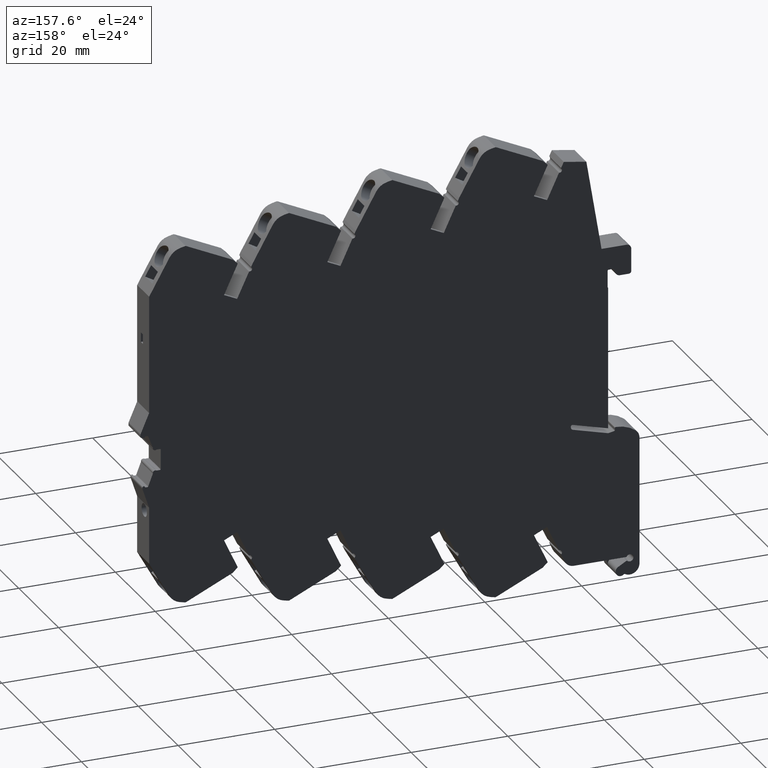
[diagram: clean part render]
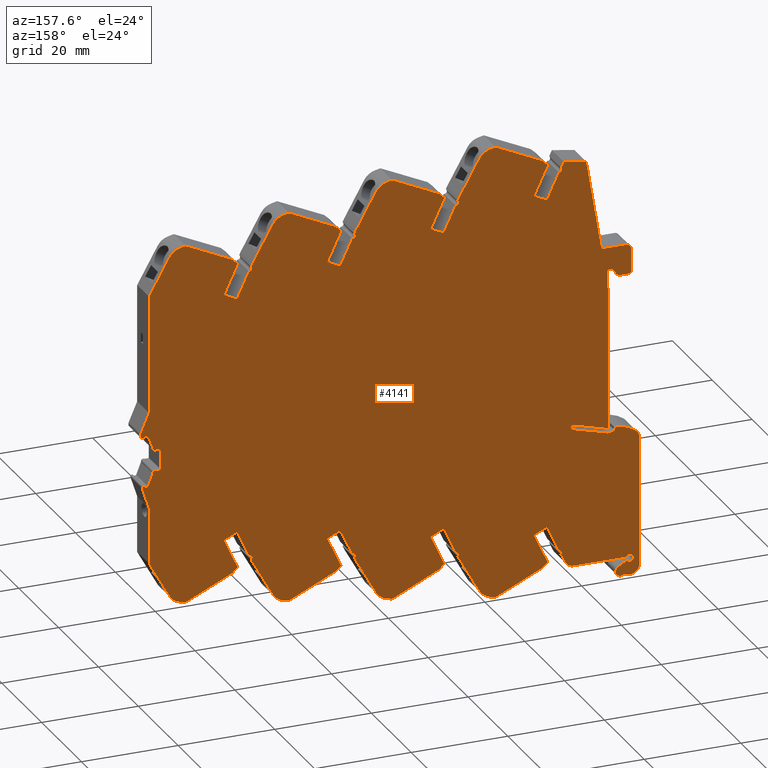
[diagram: same view with one face highlighted and labeled with its STEP entity id]
A machine part, auxiliary view. The second image highlights one B-rep face of the part: STEP entity #4141.
In plain terms, the highlighted planar face has unit normal (0, 1, 0).
Its self-contained STEP definition (entity closure, byte-faithful):
#9 = LINE ( 'NONE', #7953, #5314 ) ;
#20 = CARTESIAN_POINT ( 'NONE',  ( 3.000000000000000000, -13.05275900000000000, -36.54999999999999005 ) ) ;
#24 = LINE ( 'NONE', #5848, #128 ) ;
#33 = LINE ( 'NONE', #2669, #5040 ) ;
#37 = AXIS2_PLACEMENT_3D ( 'NONE', #3311, #591, #3268 ) ;
#40 = VERTEX_POINT ( 'NONE', #5392 ) ;
#48 = VERTEX_POINT ( 'NONE', #959 ) ;
#49 = CARTESIAN_POINT ( 'NONE',  ( 3.000000000000000000, -42.48494925318409798, 0.4714670938719134341 ) ) ;
#62 = DIRECTION ( 'NONE',  ( 1.000000000000000000, 0.000000000000000000, 0.000000000000000000 ) ) ;
#63 = DIRECTION ( 'NONE',  ( 0.000000000000000000, -0.9063073489103342650, 0.4226192013043441054 ) ) ;
#82 = VECTOR ( 'NONE', #563, 1000.000000000000114 ) ;
#87 = DIRECTION ( 'NONE',  ( 0.000000000000000000, 0.9063077943610161613, -0.4226182460335450308 ) ) ;
#92 = DIRECTION ( 'NONE',  ( 0.000000000000000000, -0.9490156814426169429, -0.3152288634881100227 ) ) ;
#104 = CARTESIAN_POINT ( 'NONE',  ( 3.000000000000000000, 38.06751836926139987, 44.32231131546600977 ) ) ;
#113 = CARTESIAN_POINT ( 'NONE',  ( 3.000000000000000000, 31.61344564292459935, 29.64160416650739904 ) ) ;
#121 = ORIENTED_EDGE ( 'NONE', *, *, #7688, .T. ) ;
#128 = VECTOR ( 'NONE', #4589, 1000.000000000000114 ) ;
#129 = EDGE_CURVE ( 'NONE', #3436, #6629, #788, .T. ) ;
#135 = CARTESIAN_POINT ( 'NONE',  ( 3.000000000000000000, 36.05592999999999648, 11.02000000000000846 ) ) ;
#161 = LINE ( 'NONE', #6722, #2433 ) ;
#166 = CARTESIAN_POINT ( 'NONE',  ( 3.000000000000000000, 39.70974242191489623, 25.13856632573421024 ) ) ;
#172 = VERTEX_POINT ( 'NONE', #4441 ) ;
#175 = VECTOR ( 'NONE', #3622, 1000.000000000000114 ) ;
#189 = CARTESIAN_POINT ( 'NONE',  ( 3.000000000000000000, -39.57747228031760045, 21.68741960114301648 ) ) ;
#191 = VERTEX_POINT ( 'NONE', #4396 ) ;
#192 = CARTESIAN_POINT ( 'NONE',  ( 3.000000000000000000, 38.25747229475460642, 43.07241963210341851 ) ) ;
#207 = EDGE_CURVE ( 'NONE', #4847, #5398, #349, .T. ) ;
#210 = CIRCLE ( 'NONE', #483, 1.000000000000000888 ) ;
#212 = EDGE_CURVE ( 'NONE', #7305, #5787, #5700, .T. ) ;
#226 = ORIENTED_EDGE ( 'NONE', *, *, #4782, .T. ) ;
#231 = ORIENTED_EDGE ( 'NONE', *, *, #7336, .T. ) ;
#233 = EDGE_CURVE ( 'NONE', #6955, #5689, #3067, .T. ) ;
#237 = LINE ( 'NONE', #7487, #4665 ) ;
#271 = VERTEX_POINT ( 'NONE', #7944 ) ;
#280 = CARTESIAN_POINT ( 'NONE',  ( 3.000000000000000000, -33.26623499999999467, -31.61891399999998953 ) ) ;
#281 = VERTEX_POINT ( 'NONE', #4481 ) ;
#282 = ORIENTED_EDGE ( 'NONE', *, *, #8424, .F. ) ;
#284 = CARTESIAN_POINT ( 'NONE',  ( 3.000000000000000000, -15.33446299900839982, -45.44999999999998863 ) ) ;
#292 = ORIENTED_EDGE ( 'NONE', *, *, #233, .T. ) ;
#308 = DIRECTION ( 'NONE',  ( 0.000000000000000000, 0.4226182192191442755, 0.9063078068647755225 ) ) ;
#310 = CARTESIAN_POINT ( 'NONE',  ( 3.000000000000000000, -30.83593000000000117, 32.40500000000000824 ) ) ;
#323 = EDGE_CURVE ( 'NONE', #8265, #2589, #1378, .T. ) ;
#325 = ORIENTED_EDGE ( 'NONE', *, *, #7024, .T. ) ;
#334 = ORIENTED_EDGE ( 'NONE', *, *, #6759, .T. ) ;
#340 = LINE ( 'NONE', #1033, #7621 ) ;
#345 = CARTESIAN_POINT ( 'NONE',  ( 3.000000000000000000, -7.625373000000000623, 48.35000000000000853 ) ) ;
#347 = ORIENTED_EDGE ( 'NONE', *, *, #7781, .T. ) ;
#349 = LINE ( 'NONE', #7604, #1981 ) ;
#355 = CIRCLE ( 'NONE', #8212, 0.5000000000000004441 ) ;
#359 = ORIENTED_EDGE ( 'NONE', *, *, #1278, .F. ) ;
#360 = LINE ( 'NONE', #1699, #3533 ) ;
#361 = LINE ( 'NONE', #2996, #6746 ) ;
#363 = CIRCLE ( 'NONE', #3940, 0.5000000000000073275 ) ;
#365 = DIRECTION ( 'NONE',  ( 0.000000000000000000, 1.000000000000000000, 0.000000000000000000 ) ) ;
#372 = EDGE_CURVE ( 'NONE', #7539, #7405, #8194, .T. ) ;
#374 = LINE ( 'NONE', #3524, #3866 ) ;
#375 = DIRECTION ( 'NONE',  ( 0.000000000000000000, 1.000000000000000000, 0.000000000000000000 ) ) ;
#378 = VERTEX_POINT ( 'NONE', #8506 ) ;
#387 = CARTESIAN_POINT ( 'NONE',  ( 3.000000000000000000, -33.26623499999999467, -31.61891399999998953 ) ) ;
#401 = LINE ( 'NONE', #1059, #1525 ) ;
#413 = DIRECTION ( 'NONE',  ( 0.000000000000000000, -0.8712138348212500327, -0.4909037115525320960 ) ) ;
#425 = DIRECTION ( 'NONE',  ( 0.000000000000000000, -0.9063077647842205931, -0.4226183094611852264 ) ) ;
#427 = VECTOR ( 'NONE', #1572, 1000.000000000000227 ) ;
#428 = AXIS2_PLACEMENT_3D ( 'NONE', #6784, #875, #6134 ) ;
#436 = CARTESIAN_POINT ( 'NONE',  ( 3.000000000000000000, 32.22057999999999822, 29.35849200000000536 ) ) ;
#440 = DIRECTION ( 'NONE',  ( 0.000000000000000000, 1.000000000000000000, 0.000000000000000000 ) ) ;
#441 = DIRECTION ( 'NONE',  ( 1.000000000000000000, 0.000000000000000000, 0.000000000000000000 ) ) ;
#462 = CARTESIAN_POINT ( 'NONE',  ( 3.000000000000000000, 41.87500000000000000, -39.74999999999999289 ) ) ;
#463 = VECTOR ( 'NONE', #3419, 1000.000000000000000 ) ;
#469 = LINE ( 'NONE', #5083, #4091 ) ;
#476 = DIRECTION ( 'NONE',  ( 0.000000000000000000, -0.9063073489103398162, -0.4226192013043319484 ) ) ;
#483 = AXIS2_PLACEMENT_3D ( 'NONE', #8282, #8242, #6855 ) ;
#490 = CIRCLE ( 'NONE', #5876, 0.1999999999999987899 ) ;
#495 = AXIS2_PLACEMENT_3D ( 'NONE', #5348, #4062, #7992 ) ;
#507 = CARTESIAN_POINT ( 'NONE',  ( 3.000000000000000000, -27.00057999999999936, 50.74349200000001048 ) ) ;
#534 = CARTESIAN_POINT ( 'NONE',  ( 3.000000000000000000, -44.13362198427689975, -46.31641202723329798 ) ) ;
#543 = CARTESIAN_POINT ( 'NONE',  ( 3.000000000000000000, -35.09255900000000139, 12.06949300000000669 ) ) ;
#547 = CARTESIAN_POINT ( 'NONE',  ( 3.000000000000000000, -23.45623000000000147, 32.53607600000000133 ) ) ;
#552 = VECTOR ( 'NONE', #1961, 1000.000000000000000 ) ;
#561 = VECTOR ( 'NONE', #2269, 1000.000000000000000 ) ;
#563 = DIRECTION ( 'NONE',  ( 0.000000000000000000, -0.9063077764700133709, -0.4226182844009241379 ) ) ;
#564 = CARTESIAN_POINT ( 'NONE',  ( 3.000000000000000000, 41.55567196690120113, 21.94211615099361268 ) ) ;
#573 = VERTEX_POINT ( 'NONE', #8070 ) ;
#574 = CIRCLE ( 'NONE', #2917, 0.2000000000000310141 ) ;
#576 = ORIENTED_EDGE ( 'NONE', *, *, #7259, .T. ) ;
#579 = DIRECTION ( 'NONE',  ( 0.000000000000000000, -0.9190536252302482501, 0.3941325081126120233 ) ) ;
#581 = EDGE_CURVE ( 'NONE', #5379, #3965, #4056, .T. ) ;
#583 = DIRECTION ( 'NONE',  ( 0.000000000000000000, 0.4226182966199907853, -0.9063077707721683973 ) ) ;
#584 = AXIS2_PLACEMENT_3D ( 'NONE', #8060, #2141, #4766 ) ;
#588 = EDGE_CURVE ( 'NONE', #2288, #2449, #5607, .T. ) ;
#589 = VECTOR ( 'NONE', #6375, 1000.000000000000000 ) ;
#591 = DIRECTION ( 'NONE',  ( 1.000000000000000000, 0.000000000000000000, 0.000000000000000000 ) ) ;
#595 = ORIENTED_EDGE ( 'NONE', *, *, #5350, .T. ) ;
#598 = ORIENTED_EDGE ( 'NONE', *, *, #4530, .T. ) ;
#605 = EDGE_CURVE ( 'NONE', #8350, #7141, #1716, .T. ) ;
#610 = CARTESIAN_POINT ( 'NONE',  ( 3.000000000000000000, 39.32592999999999961, -10.36499999999999311 ) ) ;
#616 = DIRECTION ( 'NONE',  ( 0.000000000000000000, 0.4226182966199911184, -0.9063077707721682863 ) ) ;
#620 = DIRECTION ( 'NONE',  ( 0.000000000000000000, 1.000000000000000000, 0.000000000000000000 ) ) ;
#621 = AXIS2_PLACEMENT_3D ( 'NONE', #6644, #7943, #6037 ) ;
#623 = CARTESIAN_POINT ( 'NONE',  ( 3.000000000000000000, -10.57974388770190011, 51.87888517581471604 ) ) ;
#635 = LINE ( 'NONE', #5767, #5408 ) ;
#640 = ORIENTED_EDGE ( 'NONE', *, *, #5226, .F. ) ;
#642 = EDGE_CURVE ( 'NONE', #7721, #7627, #8199, .T. ) ;
#643 = EDGE_CURVE ( 'NONE', #4903, #2228, #340, .T. ) ;
#649 = DIRECTION ( 'NONE',  ( 1.000000000000000000, 0.000000000000000000, 0.000000000000000000 ) ) ;
#658 = CARTESIAN_POINT ( 'NONE',  ( 3.000000000000000000, 40.31255999999999773, -9.315506999999993099 ) ) ;
#662 = DIRECTION ( 'NONE',  ( 0.000000000000000000, 0.9063077943610161613, -0.4226182460335450308 ) ) ;
#673 = VERTEX_POINT ( 'NONE', #4309 ) ;
#677 = CARTESIAN_POINT ( 'NONE',  ( 3.000000000000000000, -10.87537300000000151, 51.12469600000000725 ) ) ;
#680 = ORIENTED_EDGE ( 'NONE', *, *, #3672, .T. ) ;
#683 = DIRECTION ( 'NONE',  ( 0.000000000000000000, -1.000000000000000000, 0.000000000000000000 ) ) ;
#696 = CARTESIAN_POINT ( 'NONE',  ( 3.000000000000000000, -37.75974242191490049, 25.13856632573421024 ) ) ;
#709 = DIRECTION ( 'NONE',  ( 0.000000000000000000, -0.2141236708556889523, -0.9768065589354346656 ) ) ;
#710 = VECTOR ( 'NONE', #3059, 1000.000000000000000 ) ;
#711 = CARTESIAN_POINT ( 'NONE',  ( 3.000000000000000000, 0.2746271828952749905, 52.05000000000000426 ) ) ;
#713 = EDGE_CURVE ( 'NONE', #5689, #1230, #3747, .T. ) ;
#726 = DIRECTION ( 'NONE',  ( 0.000000000000000000, 1.000000000000000000, 0.000000000000000000 ) ) ;
#727 = LINE ( 'NONE', #2538, #1470 ) ;
#731 = ORIENTED_EDGE ( 'NONE', *, *, #5860, .T. ) ;
#735 = DIRECTION ( 'NONE',  ( 0.000000000000000000, -0.9062909551863408408, 0.4226543558836578507 ) ) ;
#747 = ORIENTED_EDGE ( 'NONE', *, *, #6710, .F. ) ;
#754 = LINE ( 'NONE', #3299, #1531 ) ;
#758 = ORIENTED_EDGE ( 'NONE', *, *, #6164, .T. ) ;
#761 = VERTEX_POINT ( 'NONE', #3221 ) ;
#770 = VERTEX_POINT ( 'NONE', #543 ) ;
#771 = VECTOR ( 'NONE', #579, 1000.000000000000227 ) ;
#775 = VECTOR ( 'NONE', #425, 999.9999999999998863 ) ;
#780 = EDGE_CURVE ( 'NONE', #7925, #2555, #7345, .T. ) ;
#781 = EDGE_CURVE ( 'NONE', #378, #6890, #635, .T. ) ;
#783 = VECTOR ( 'NONE', #662, 1000.000000000000114 ) ;
#788 = LINE ( 'NONE', #7516, #463 ) ;
#789 = DIRECTION ( 'NONE',  ( 0.000000000000000000, 0.6849492895505460144, 0.7285907429718019301 ) ) ;
#793 = VERTEX_POINT ( 'NONE', #5206 ) ;
#794 = VERTEX_POINT ( 'NONE', #1286 ) ;
#797 = CARTESIAN_POINT ( 'NONE',  ( 3.000000000000000000, -27.99408499999999833, 13.87000000000000810 ) ) ;
#813 = DIRECTION ( 'NONE',  ( 0.000000000000000000, 1.000000000000000000, 0.000000000000000000 ) ) ;
#816 = VECTOR ( 'NONE', #413, 1000.000000000000114 ) ;
#820 = EDGE_CURVE ( 'NONE', #4081, #793, #2106, .T. ) ;
#821 = CIRCLE ( 'NONE', #4401, 0.4513739414286500051 ) ;
#832 = CARTESIAN_POINT ( 'NONE',  ( 3.000000000000000000, 44.82567196690120426, 0.5571161509936097822 ) ) ;
#837 = DIRECTION ( 'NONE',  ( 0.000000000000000000, 0.000000000000000000, -1.000000000000000000 ) ) ;
#847 = ORIENTED_EDGE ( 'NONE', *, *, #2042, .T. ) ;
#851 = DIRECTION ( 'NONE',  ( 1.000000000000000000, 0.000000000000000000, 0.000000000000000000 ) ) ;
#855 = CARTESIAN_POINT ( 'NONE',  ( 3.000000000000000000, -3.425373000000000001, 48.35000000000000853 ) ) ;
#859 = VERTEX_POINT ( 'NONE', #2666 ) ;
#870 = EDGE_CURVE ( 'NONE', #271, #6014, #6673, .T. ) ;
#875 = DIRECTION ( 'NONE',  ( 1.000000000000000000, 0.000000000000000000, 0.000000000000000000 ) ) ;
#876 = ORIENTED_EDGE ( 'NONE', *, *, #8000, .T. ) ;
#879 = EDGE_CURVE ( 'NONE', #2589, #6212, #3485, .T. ) ;
#890 = ORIENTED_EDGE ( 'NONE', *, *, #5861, .T. ) ;
#892 = CARTESIAN_POINT ( 'NONE',  ( 3.000000000000000000, 39.32592999999999961, -10.36499999999999311 ) ) ;
#901 = CARTESIAN_POINT ( 'NONE',  ( 3.000000000000000000, -46.02597487866540149, -47.64261813837310200 ) ) ;
#905 = LINE ( 'NONE', #3539, #710 ) ;
#920 = CARTESIAN_POINT ( 'NONE',  ( 3.000000000000000000, -7.625373000000000623, 48.35000000000000853 ) ) ;
#921 = DIRECTION ( 'NONE',  ( 0.000000000000000000, -1.000000000000000000, 0.000000000000000000 ) ) ;
#922 = VERTEX_POINT ( 'NONE', #4675 ) ;
#929 = CARTESIAN_POINT ( 'NONE',  ( 3.000000000000000000, 18.35952373132679938, -45.40384812528407821 ) ) ;
#959 = CARTESIAN_POINT ( 'NONE',  ( 3.000000000000000000, -0.1753730000000000011, 51.12469600000000725 ) ) ;
#964 = EDGE_CURVE ( 'NONE', #4452, #4599, #5126, .T. ) ;
#966 = VERTEX_POINT ( 'NONE', #7411 ) ;
#967 = CARTESIAN_POINT ( 'NONE',  ( 3.000000000000000000, -36.11751672738229502, 44.32231424364941574 ) ) ;
#978 = DIRECTION ( 'NONE',  ( 0.000000000000000000, -0.9063076887622646405, 0.4226184724907348644 ) ) ;
#979 = CIRCLE ( 'NONE', #6208, 0.1999999999999953204 ) ;
#988 = CIRCLE ( 'NONE', #6630, 0.5000000000000004441 ) ;
#990 = VERTEX_POINT ( 'NONE', #6366 ) ;
#1003 = CARTESIAN_POINT ( 'NONE',  ( 3.000000000000000000, -0.3753730000000189970, 51.45000000000000284 ) ) ;
#1017 = ORIENTED_EDGE ( 'NONE', *, *, #6895, .T. ) ;
#1023 = CARTESIAN_POINT ( 'NONE',  ( 3.000000000000000000, -42.32500000000000284, -47.94222499999999343 ) ) ;
#1026 = ORIENTED_EDGE ( 'NONE', *, *, #3546, .T. ) ;
#1033 = CARTESIAN_POINT ( 'NONE',  ( 3.000000000000000000, -31.82255900000000182, 33.45449300000000648 ) ) ;
#1042 = LINE ( 'NONE', #8294, #7809 ) ;
#1043 = CIRCLE ( 'NONE', #3665, 0.2000000000000005107 ) ;
#1044 = DIRECTION ( 'NONE',  ( 0.000000000000000000, 1.000000000000000000, 0.000000000000000000 ) ) ;
#1045 = EDGE_CURVE ( 'NONE', #2916, #7150, #3005, .T. ) ;
#1049 = VECTOR ( 'NONE', #3903, 1000.000000000000227 ) ;
#1057 = CARTESIAN_POINT ( 'NONE',  ( 3.000000000000000000, -42.23026323016289751, -48.11228301148965159 ) ) ;
#1059 = CARTESIAN_POINT ( 'NONE',  ( 3.000000000000000000, 28.67623000000000033, 11.15107600000001042 ) ) ;
#1061 = VECTOR ( 'NONE', #4447, 1000.000000000000000 ) ;
#1074 = VERTEX_POINT ( 'NONE', #5019 ) ;
#1082 = ORIENTED_EDGE ( 'NONE', *, *, #2170, .T. ) ;
#1088 = CARTESIAN_POINT ( 'NONE',  ( 3.000000000000000000, -14.92500000000000071, -45.64999999999999147 ) ) ;
#1095 = CARTESIAN_POINT ( 'NONE',  ( 3.000000000000000000, -13.79636712162409928, -36.92059045390751493 ) ) ;
#1101 = EDGE_CURVE ( 'NONE', #4728, #7054, #8040, .T. ) ;
#1105 = CARTESIAN_POINT ( 'NONE',  ( 3.000000000000000000, 36.43974242191490021, 46.52356632573421535 ) ) ;
#1112 = ORIENTED_EDGE ( 'NONE', *, *, #8518, .T. ) ;
#1118 = CARTESIAN_POINT ( 'NONE',  ( 3.000000000000000000, -33.54057999999999851, 7.973492000000012681 ) ) ;
#1120 = CARTESIAN_POINT ( 'NONE',  ( 3.000000000000000000, -8.086747000000000796, 49.97000000000000597 ) ) ;
#1125 = VECTOR ( 'NONE', #2707, 1000.000000000000227 ) ;
#1129 = VECTOR ( 'NONE', #7592, 1000.000000000000227 ) ;
#1130 = CARTESIAN_POINT ( 'NONE',  ( 3.000000000000000000, -45.12500011512510412, -46.84999986922189663 ) ) ;
#1132 = DIRECTION ( 'NONE',  ( 0.000000000000000000, -0.2141227343362739066, 0.9768067642273764450 ) ) ;
#1134 = DIRECTION ( 'NONE',  ( 0.000000000000000000, -1.000000000000000000, 0.000000000000000000 ) ) ;
#1143 = DIRECTION ( 'NONE',  ( 0.000000000000000000, 0.4226182389767559333, 0.9063077976516507039 ) ) ;
#1147 = ORIENTED_EDGE ( 'NONE', *, *, #8483, .T. ) ;
#1155 = CARTESIAN_POINT ( 'NONE',  ( 3.000000000000000000, 41.87500000000000000, -39.74999999999999289 ) ) ;
#1160 = CARTESIAN_POINT ( 'NONE',  ( 3.000000000000000000, -29.66344564292460362, 29.64160416650739904 ) ) ;
#1173 = EDGE_CURVE ( 'NONE', #2265, #3133, #5352, .T. ) ;
#1188 = CIRCLE ( 'NONE', #6012, 0.2000000000000126676 ) ;
#1193 = CIRCLE ( 'NONE', #1606, 0.4000000000000114575 ) ;
#1197 = CIRCLE ( 'NONE', #8086, 0.2000000000000196065 ) ;
#1223 = CARTESIAN_POINT ( 'NONE',  ( 3.000000000000000000, 34.88344564292459893, 8.256604166507406362 ) ) ;
#1228 = EDGE_CURVE ( 'NONE', #4542, #7150, #1822, .T. ) ;
#1230 = VERTEX_POINT ( 'NONE', #920 ) ;
#1233 = DIRECTION ( 'NONE',  ( 1.000000000000000000, 0.000000000000000000, 0.000000000000000000 ) ) ;
#1241 = DIRECTION ( 'NONE',  ( 0.000000000000000000, 1.000000000000000000, 0.000000000000000000 ) ) ;
#1242 = AXIS2_PLACEMENT_3D ( 'NONE', #6355, #441, #2519 ) ;
#1245 = DIRECTION ( 'NONE',  ( 1.000000000000000000, 0.000000000000000000, 0.000000000000000000 ) ) ;
#1250 = VECTOR ( 'NONE', #4667, 1000.000000000000000 ) ;
#1261 = VECTOR ( 'NONE', #1134, 1000.000000000000000 ) ;
#1264 = VERTEX_POINT ( 'NONE', #6133 ) ;
#1274 = DIRECTION ( 'NONE',  ( 1.000000000000000000, 0.000000000000000000, 0.000000000000000000 ) ) ;
#1278 = EDGE_CURVE ( 'NONE', #281, #3363, #3603, .T. ) ;
#1286 = CARTESIAN_POINT ( 'NONE',  ( 3.000000000000000000, -32.04153209865420138, 8.672509953996806686 ) ) ;
#1300 = CARTESIAN_POINT ( 'NONE',  ( 3.000000000000000000, -14.72499999999999964, -45.84999988079069766 ) ) ;
#1309 = LINE ( 'NONE', #8520, #783 ) ;
#1311 = EDGE_CURVE ( 'NONE', #1074, #2371, #3550, .T. ) ;
#1314 = DIRECTION ( 'NONE',  ( 0.000000000000000000, 0.4226182389767559333, -0.9063077976516507039 ) ) ;
#1315 = AXIS2_PLACEMENT_3D ( 'NONE', #5340, #2632, #2719 ) ;
#1320 = ORIENTED_EDGE ( 'NONE', *, *, #7591, .T. ) ;
#1325 = CIRCLE ( 'NONE', #3399, 3.349999999997383071 ) ;
#1327 = DIRECTION ( 'NONE',  ( 0.000000000000000000, 1.000000000000000000, 0.000000000000000000 ) ) ;
#1330 = CARTESIAN_POINT ( 'NONE',  ( 3.000000000000000000, -42.12500000000000000, -47.94222522020768196 ) ) ;
#1340 = DIRECTION ( 'NONE',  ( 0.000000000000000000, 1.000000000000000000, 0.000000000000000000 ) ) ;
#1344 = ORIENTED_EDGE ( 'NONE', *, *, #4432, .T. ) ;
#1347 = EDGE_CURVE ( 'NONE', #4936, #5763, #8122, .T. ) ;
#1358 = DIRECTION ( 'NONE',  ( 0.000000000000000000, -0.9063077888657260495, -0.4226182578182329785 ) ) ;
#1368 = VECTOR ( 'NONE', #5066, 1000.000000000000114 ) ;
#1369 = CARTESIAN_POINT ( 'NONE',  ( 3.000000000000000000, -0.3788611766936069714, 52.31237316871490606 ) ) ;
#1375 = ORIENTED_EDGE ( 'NONE', *, *, #3160, .T. ) ;
#1378 = LINE ( 'NONE', #4013, #2260 ) ;
#1381 = EDGE_CURVE ( 'NONE', #1406, #7139, #6434, .T. ) ;
#1394 = VECTOR ( 'NONE', #7676, 1000.000000000000114 ) ;
#1395 = VERTEX_POINT ( 'NONE', #7129 ) ;
#1403 = CARTESIAN_POINT ( 'NONE',  ( 3.000000000000000000, -15.76027599999999929, -44.24999999999999289 ) ) ;
#1406 = VERTEX_POINT ( 'NONE', #1088 ) ;
#1411 = EDGE_CURVE ( 'NONE', #7745, #8023, #6773, .T. ) ;
#1431 = ORIENTED_EDGE ( 'NONE', *, *, #129, .T. ) ;
#1438 = ORIENTED_EDGE ( 'NONE', *, *, #2353, .T. ) ;
#1443 = VERTEX_POINT ( 'NONE', #5047 ) ;
#1444 = EDGE_CURVE ( 'NONE', #6616, #6361, #6303, .T. ) ;
#1447 = ORIENTED_EDGE ( 'NONE', *, *, #8050, .T. ) ;
#1449 = DIRECTION ( 'NONE',  ( 0.000000000000000000, -0.8712138348212500327, 0.4909037115525320960 ) ) ;
#1458 = EDGE_CURVE ( 'NONE', #7627, #172, #1675, .T. ) ;
#1465 = VECTOR ( 'NONE', #2063, 1000.000000000000114 ) ;
#1470 = VECTOR ( 'NONE', #7239, 1000.000000000000114 ) ;
#1487 = EDGE_CURVE ( 'NONE', #3436, #3573, #988, .T. ) ;
#1490 = ORIENTED_EDGE ( 'NONE', *, *, #879, .T. ) ;
#1492 = DIRECTION ( 'NONE',  ( 0.000000000000000000, 1.000000000000000000, 0.000000000000000000 ) ) ;
#1521 = CARTESIAN_POINT ( 'NONE',  ( 3.000000000000000000, 23.07499999999999929, -42.88857899999998580 ) ) ;
#1525 = VECTOR ( 'NONE', #1143, 1000.000000000000227 ) ;
#1531 = VECTOR ( 'NONE', #1358, 1000.000000000000227 ) ;
#1532 = CIRCLE ( 'NONE', #428, 0.5000000000000177636 ) ;
#1534 = ORIENTED_EDGE ( 'NONE', *, *, #2651, .T. ) ;
#1535 = CARTESIAN_POINT ( 'NONE',  ( 3.000000000000000000, 23.07499999999999929, -48.04999999999999005 ) ) ;
#1544 = CARTESIAN_POINT ( 'NONE',  ( 3.000000000000000000, -41.63255900000000054, -30.70050699999999111 ) ) ;
#1559 = DIRECTION ( 'NONE',  ( 0.000000000000000000, 1.000000000000000000, 0.000000000000000000 ) ) ;
#1565 = DIRECTION ( 'NONE',  ( 0.000000000000000000, 1.000000000000000000, 0.000000000000000000 ) ) ;
#1572 = DIRECTION ( 'NONE',  ( 0.000000000000000000, -0.9063077888657260495, 0.4226182578182329785 ) ) ;
#1575 = CARTESIAN_POINT ( 'NONE',  ( 3.000000000000000000, -15.27537300000000009, 50.75000000000000711 ) ) ;
#1580 = ORIENTED_EDGE ( 'NONE', *, *, #588, .T. ) ;
#1581 = ORIENTED_EDGE ( 'NONE', *, *, #2102, .T. ) ;
#1606 = AXIS2_PLACEMENT_3D ( 'NONE', #49, #5268, #4147 ) ;
#1607 = LINE ( 'NONE', #135, #4270 ) ;
#1608 = DIRECTION ( 'NONE',  ( 1.000000000000000000, 0.000000000000000000, 0.000000000000000000 ) ) ;
#1610 = VECTOR ( 'NONE', #616, 1000.000000000000114 ) ;
#1615 = DIRECTION ( 'NONE',  ( 0.000000000000000000, -1.000000000000000000, 0.000000000000000000 ) ) ;
#1616 = LINE ( 'NONE', #4243, #427 ) ;
#1621 = VERTEX_POINT ( 'NONE', #2551 ) ;
#1624 = ORIENTED_EDGE ( 'NONE', *, *, #6042, .T. ) ;
#1633 = ORIENTED_EDGE ( 'NONE', *, *, #372, .T. ) ;
#1639 = DIRECTION ( 'NONE',  ( 1.000000000000000000, 0.000000000000000000, 0.000000000000000000 ) ) ;
#1646 = EDGE_CURVE ( 'NONE', #2105, #2237, #3326, .T. ) ;
#1648 = DIRECTION ( 'NONE',  ( 0.000000000000000000, 0.9863492578754158302, 0.1646667589060299974 ) ) ;
#1651 = VERTEX_POINT ( 'NONE', #5178 ) ;
#1652 = VERTEX_POINT ( 'NONE', #4691 ) ;
#1654 = AXIS2_PLACEMENT_3D ( 'NONE', #7780, #7091, #5750 ) ;
#1666 = AXIS2_PLACEMENT_3D ( 'NONE', #711, #1274, #620 ) ;
#1675 = CIRCLE ( 'NONE', #6907, 0.4000000000000392131 ) ;
#1699 = CARTESIAN_POINT ( 'NONE',  ( 3.000000000000000000, 42.59592999999999563, -31.74999999999998579 ) ) ;
#1700 = DIRECTION ( 'NONE',  ( 1.000000000000000000, 0.000000000000000000, 0.000000000000000000 ) ) ;
#1703 = VERTEX_POINT ( 'NONE', #8029 ) ;
#1716 = LINE ( 'NONE', #1160, #4579 ) ;
#1729 = DIRECTION ( 'NONE',  ( 0.000000000000000000, 1.000000000000000000, 0.000000000000000000 ) ) ;
#1735 = VECTOR ( 'NONE', #7136, 1000.000000000000227 ) ;
#1738 = DIRECTION ( 'NONE',  ( 0.000000000000000000, 0.4226181467274078285, -0.9063078406682196775 ) ) ;
#1741 = CARTESIAN_POINT ( 'NONE',  ( 3.000000000000000000, -37.37593000000000387, -10.36499999999999311 ) ) ;
#1745 = ORIENTED_EDGE ( 'NONE', *, *, #4881, .F. ) ;
#1746 = CIRCLE ( 'NONE', #6567, 1.000000000000000888 ) ;
#1758 = CARTESIAN_POINT ( 'NONE',  ( 3.000000000000000000, -17.72635142724780266, -48.75000000000007105 ) ) ;
#1766 = ORIENTED_EDGE ( 'NONE', *, *, #1458, .T. ) ;
#1780 = CARTESIAN_POINT ( 'NONE',  ( 3.000000000000000000, -36.20344564292460632, -13.12839583349259165 ) ) ;
#1790 = DIRECTION ( 'NONE',  ( 1.000000000000000000, 0.000000000000000000, 0.000000000000000000 ) ) ;
#1794 = CARTESIAN_POINT ( 'NONE',  ( 3.000000000000000000, -36.81058000000000163, -13.41150799999999244 ) ) ;
#1799 = EDGE_CURVE ( 'NONE', #7384, #48, #574, .T. ) ;
#1800 = EDGE_CURVE ( 'NONE', #6113, #6016, #905, .T. ) ;
#1813 = VERTEX_POINT ( 'NONE', #7761 ) ;
#1818 = DIRECTION ( 'NONE',  ( 0.000000000000000000, 1.000000000000000000, 0.000000000000000000 ) ) ;
#1819 = CARTESIAN_POINT ( 'NONE',  ( 3.000000000000000000, 14.72499999999999964, -44.14999999999998437 ) ) ;
#1820 = EDGE_CURVE ( 'NONE', #2371, #3218, #8244, .T. ) ;
#1821 = CARTESIAN_POINT ( 'NONE',  ( 3.000000000000000000, -32.93344564292469556, 8.256604166507406362 ) ) ;
#1822 = CIRCLE ( 'NONE', #6648, 0.5000000000000073275 ) ;
#1823 = VERTEX_POINT ( 'NONE', #2496 ) ;
#1825 = CARTESIAN_POINT ( 'NONE',  ( 3.000000000000000000, -10.97971904777410046, 51.65000000000000568 ) ) ;
#1839 = EDGE_CURVE ( 'NONE', #8023, #4874, #8324, .T. ) ;
#1847 = EDGE_CURVE ( 'NONE', #8228, #5364, #7029, .T. ) ;
#1851 = EDGE_CURVE ( 'NONE', #2449, #7097, #2326, .T. ) ;
#1858 = DIRECTION ( 'NONE',  ( 0.000000000000000000, 1.000000000000000000, 0.000000000000000000 ) ) ;
#1860 = CARTESIAN_POINT ( 'NONE',  ( 3.000000000000000000, 17.92500000000000071, -46.70984690908846204 ) ) ;
#1906 = CARTESIAN_POINT ( 'NONE',  ( 3.000000000000000000, -12.76298094684420015, -36.92764580161988874 ) ) ;
#1911 = LINE ( 'NONE', #1780, #1735 ) ;
#1920 = VECTOR ( 'NONE', #5932, 1000.000000000000114 ) ;
#1922 = CARTESIAN_POINT ( 'NONE',  ( 3.000000000000000000, -16.15245877346630010, -49.98404291431567259 ) ) ;
#1923 = LINE ( 'NONE', #6535, #5914 ) ;
#1934 = CARTESIAN_POINT ( 'NONE',  ( 3.000000000000000000, -39.47152619707340193, -34.51248909189681058 ) ) ;
#1938 = ORIENTED_EDGE ( 'NONE', *, *, #2112, .T. ) ;
#1954 = CARTESIAN_POINT ( 'NONE',  ( 3.000000000000000000, 33.21408499999999719, -7.514999999999993463 ) ) ;
#1958 = VERTEX_POINT ( 'NONE', #8448 ) ;
#1961 = DIRECTION ( 'NONE',  ( 0.000000000000000000, 0.000000000000000000, 1.000000000000000000 ) ) ;
#1972 = CARTESIAN_POINT ( 'NONE',  ( 3.000000000000000000, -44.12500002019420009, -48.74999999999998579 ) ) ;
#1981 = VECTOR ( 'NONE', #1132, 1000.000000000000114 ) ;
#1988 = VERTEX_POINT ( 'NONE', #677 ) ;
#2011 = ORIENTED_EDGE ( 'NONE', *, *, #8391, .F. ) ;
#2019 = VERTEX_POINT ( 'NONE', #5161 ) ;
#2030 = LINE ( 'NONE', #2070, #82 ) ;
#2032 = DIRECTION ( 'NONE',  ( 0.000000000000000000, -0.2141227343362779589, 0.9768067642273756679 ) ) ;
#2042 = EDGE_CURVE ( 'NONE', #5650, #966, #2201, .T. ) ;
#2046 = DIRECTION ( 'NONE',  ( 0.000000000000000000, 0.4226182389767559333, -0.9063077976516507039 ) ) ;
#2047 = LINE ( 'NONE', #623, #1250 ) ;
#2058 = DIRECTION ( 'NONE',  ( 0.000000000000000000, 1.000000000000000000, 0.000000000000000000 ) ) ;
#2061 = ORIENTED_EDGE ( 'NONE', *, *, #3408, .T. ) ;
#2063 = DIRECTION ( 'NONE',  ( 0.000000000000000000, -0.8712138348212500327, 0.4909037115525320960 ) ) ;
#2070 = CARTESIAN_POINT ( 'NONE',  ( 3.000000000000000000, -39.47152619707340193, -34.51248909189681058 ) ) ;
#2079 = EDGE_CURVE ( 'NONE', #7796, #3961, #821, .T. ) ;
#2091 = CARTESIAN_POINT ( 'NONE',  ( 3.000000000000000000, -40.32500000000000284, -37.11722635186902153 ) ) ;
#2101 = DIRECTION ( 'NONE',  ( 0.000000000000000000, -0.9335804211319134183, 0.3583679635223537829 ) ) ;
#2102 = EDGE_CURVE ( 'NONE', #7438, #922, #3029, .T. ) ;
#2104 = ORIENTED_EDGE ( 'NONE', *, *, #7756, .T. ) ;
#2105 = VERTEX_POINT ( 'NONE', #5417 ) ;
#2106 = CIRCLE ( 'NONE', #37, 0.5000000000000073275 ) ;
#2108 = DIRECTION ( 'NONE',  ( 1.000000000000000000, 0.000000000000000000, 0.000000000000000000 ) ) ;
#2112 = EDGE_CURVE ( 'NONE', #4874, #4177, #6111, .T. ) ;
#2120 = DIRECTION ( 'NONE',  ( 0.000000000000000000, 1.000000000000000000, 0.000000000000000000 ) ) ;
#2124 = ORIENTED_EDGE ( 'NONE', *, *, #1381, .T. ) ;
#2133 = ORIENTED_EDGE ( 'NONE', *, *, #2937, .T. ) ;
#2137 = VECTOR ( 'NONE', #6383, 1000.000000000000000 ) ;
#2141 = DIRECTION ( 'NONE',  ( 1.000000000000000000, 0.000000000000000000, 0.000000000000000000 ) ) ;
#2142 = CIRCLE ( 'NONE', #4344, 3.349999999997368860 ) ;
#2146 = AXIS2_PLACEMENT_3D ( 'NONE', #3666, #1639, #5732 ) ;
#2159 = AXIS2_PLACEMENT_3D ( 'NONE', #7977, #7329, #2058 ) ;
#2167 = CARTESIAN_POINT ( 'NONE',  ( 3.000000000000000000, 34.47500000000000142, 8.545000000000010587 ) ) ;
#2170 = EDGE_CURVE ( 'NONE', #990, #7539, #5555, .T. ) ;
#2176 = DIRECTION ( 'NONE',  ( 0.000000000000000000, -0.9063081429139643319, -0.4226174985584971178 ) ) ;
#2201 = CIRCLE ( 'NONE', #5645, 3.349999999997549160 ) ;
#2215 = AXIS2_PLACEMENT_3D ( 'NONE', #7050, #1700, #2435 ) ;
#2223 = ORIENTED_EDGE ( 'NONE', *, *, #7397, .T. ) ;
#2228 = VERTEX_POINT ( 'NONE', #4809 ) ;
#2237 = VERTEX_POINT ( 'NONE', #6674 ) ;
#2253 = DIRECTION ( 'NONE',  ( 1.000000000000000000, 0.000000000000000000, 0.000000000000000000 ) ) ;
#2257 = ORIENTED_EDGE ( 'NONE', *, *, #1487, .F. ) ;
#2258 = CARTESIAN_POINT ( 'NONE',  ( 3.000000000000000000, -3.325372999999999912, 48.45000000000001705 ) ) ;
#2260 = VECTOR ( 'NONE', #735, 1000.000000000000227 ) ;
#2265 = VERTEX_POINT ( 'NONE', #6887 ) ;
#2269 = DIRECTION ( 'NONE',  ( 0.000000000000000000, 0.000000000000000000, 1.000000000000000000 ) ) ;
#2288 = VERTEX_POINT ( 'NONE', #7581 ) ;
#2305 = CARTESIAN_POINT ( 'NONE',  ( 3.000000000000000000, -39.38521471387490180, 0.8350001336681136532 ) ) ;
#2316 = CARTESIAN_POINT ( 'NONE',  ( 3.000000000000000000, -10.74704661683320062, 50.93797985291601549 ) ) ;
#2318 = EDGE_CURVE ( 'NONE', #5862, #5512, #7016, .T. ) ;
#2326 = LINE ( 'NONE', #507, #1129 ) ;
#2327 = CARTESIAN_POINT ( 'NONE',  ( 3.000000000000000000, -45.92751672738229729, -19.83268575635068842 ) ) ;
#2333 = CARTESIAN_POINT ( 'NONE',  ( 3.000000000000000000, -0.3036993831667669785, 50.93797985291601549 ) ) ;
#2340 = ORIENTED_EDGE ( 'NONE', *, *, #3651, .T. ) ;
#2341 = ORIENTED_EDGE ( 'NONE', *, *, #2630, .T. ) ;
#2353 = EDGE_CURVE ( 'NONE', #4381, #6871, #6319, .T. ) ;
#2356 = VECTOR ( 'NONE', #2046, 1000.000000000000227 ) ;
#2369 = DIRECTION ( 'NONE',  ( 0.000000000000000000, 0.4226182389767570990, -0.9063077976516502599 ) ) ;
#2371 = VERTEX_POINT ( 'NONE', #1155 ) ;
#2372 = ORIENTED_EDGE ( 'NONE', *, *, #1228, .F. ) ;
#2373 = LINE ( 'NONE', #345, #5174 ) ;
#2377 = EDGE_CURVE ( 'NONE', #2524, #4903, #1923, .T. ) ;
#2391 = ORIENTED_EDGE ( 'NONE', *, *, #4303, .T. ) ;
#2397 = EDGE_CURVE ( 'NONE', #7489, #2530, #24, .T. ) ;
#2408 = CARTESIAN_POINT ( 'NONE',  ( 3.000000000000000000, -15.27537300000000009, 50.75000000000000711 ) ) ;
#2413 = CARTESIAN_POINT ( 'NONE',  ( 3.000000000000000000, 44.60751836926140612, 1.552311315466008201 ) ) ;
#2419 = CARTESIAN_POINT ( 'NONE',  ( 3.000000000000000000, -40.64592999999999989, -31.74999999999998579 ) ) ;
#2424 = DIRECTION ( 'NONE',  ( 0.000000000000000000, 1.000000000000000000, 0.000000000000000000 ) ) ;
#2433 = VECTOR ( 'NONE', #8105, 1000.000000000000000 ) ;
#2435 = DIRECTION ( 'NONE',  ( 0.000000000000000000, 1.000000000000000000, 0.000000000000000000 ) ) ;
#2449 = VERTEX_POINT ( 'NONE', #7836 ) ;
#2454 = EDGE_CURVE ( 'NONE', #5970, #8115, #4503, .T. ) ;
#2455 = DIRECTION ( 'NONE',  ( 0.000000000000000000, 0.1589857981556409006, 0.9872808698566045704 ) ) ;
#2471 = CARTESIAN_POINT ( 'NONE',  ( 3.000000000000000000, -30.27057999999999893, 29.35849200000000536 ) ) ;
#2473 = AXIS2_PLACEMENT_3D ( 'NONE', #8222, #6269, #365 ) ;
#2477 = VERTEX_POINT ( 'NONE', #8528 ) ;
#2496 = CARTESIAN_POINT ( 'NONE',  ( 3.000000000000000000, -0.4710022288112210020, 51.87887992351871702 ) ) ;
#2507 = CARTESIAN_POINT ( 'NONE',  ( 3.000000000000000000, 48.06747229475460159, -21.08258036789659329 ) ) ;
#2515 = DIRECTION ( 'NONE',  ( 0.000000000000000000, 1.000000000000000000, 0.000000000000000000 ) ) ;
#2519 = DIRECTION ( 'NONE',  ( 0.000000000000000000, 1.000000000000000000, 0.000000000000000000 ) ) ;
#2524 = VERTEX_POINT ( 'NONE', #4162 ) ;
#2530 = VERTEX_POINT ( 'NONE', #1403 ) ;
#2531 = ORIENTED_EDGE ( 'NONE', *, *, #5805, .T. ) ;
#2538 = CARTESIAN_POINT ( 'NONE',  ( 3.000000000000000000, -35.09255900000000139, 12.06949300000000669 ) ) ;
#2551 = CARTESIAN_POINT ( 'NONE',  ( 3.000000000000000000, -24.72408499999999876, 35.25500000000001677 ) ) ;
#2555 = VERTEX_POINT ( 'NONE', #189 ) ;
#2563 = AXIS2_PLACEMENT_3D ( 'NONE', #5606, #3494, #6811 ) ;
#2566 = CIRCLE ( 'NONE', #495, 0.5000000000000004441 ) ;
#2567 = EDGE_CURVE ( 'NONE', #7003, #793, #237, .T. ) ;
#2570 = ORIENTED_EDGE ( 'NONE', *, *, #3069, .F. ) ;
#2571 = CARTESIAN_POINT ( 'NONE',  ( 3.000000000000000000, 4.574627000000000443, 50.75000000000000711 ) ) ;
#2573 = EDGE_CURVE ( 'NONE', #8503, #2288, #5323, .T. ) ;
#2581 = CIRCLE ( 'NONE', #3680, 0.1999999999999987899 ) ;
#2583 = CARTESIAN_POINT ( 'NONE',  ( 3.000000000000000000, 35.49058000000000135, 7.973492000000012681 ) ) ;
#2589 = VERTEX_POINT ( 'NONE', #6750 ) ;
#2590 = ORIENTED_EDGE ( 'NONE', *, *, #1799, .F. ) ;
#2593 = DIRECTION ( 'NONE',  ( 1.000000000000000000, 0.000000000000000000, 0.000000000000000000 ) ) ;
#2602 = ORIENTED_EDGE ( 'NONE', *, *, #7325, .T. ) ;
#2606 = CARTESIAN_POINT ( 'NONE',  ( 3.000000000000000000, -34.10593000000000075, 11.02000000000000846 ) ) ;
#2626 = ORIENTED_EDGE ( 'NONE', *, *, #3330, .T. ) ;
#2630 = EDGE_CURVE ( 'NONE', #4548, #271, #6101, .T. ) ;
#2632 = DIRECTION ( 'NONE',  ( 1.000000000000000000, 0.000000000000000000, 0.000000000000000000 ) ) ;
#2633 = DIRECTION ( 'NONE',  ( 1.000000000000000000, 0.000000000000000000, 0.000000000000000000 ) ) ;
#2651 = EDGE_CURVE ( 'NONE', #1395, #4847, #6466, .T. ) ;
#2654 = CARTESIAN_POINT ( 'NONE',  ( 3.000000000000000000, 34.79521585479779588, 43.60499949079120086 ) ) ;
#2656 = CARTESIAN_POINT ( 'NONE',  ( 3.000000000000000000, -7.725372999999999379, 48.45000000000001705 ) ) ;
#2666 = CARTESIAN_POINT ( 'NONE',  ( 3.000000000000000000, -35.31153209865420450, -12.71249004600318777 ) ) ;
#2669 = CARTESIAN_POINT ( 'NONE',  ( 3.000000000000000000, 23.07499999999999929, -48.04999999999999005 ) ) ;
#2694 = CIRCLE ( 'NONE', #1315, 0.5000000000000073275 ) ;
#2699 = VECTOR ( 'NONE', #709, 999.9999999999998863 ) ;
#2707 = DIRECTION ( 'NONE',  ( 0.000000000000000000, -0.9335804211319133072, -0.3583679635223540605 ) ) ;
#2709 = DIRECTION ( 'NONE',  ( 0.000000000000000000, 1.000000000000000000, 0.000000000000000000 ) ) ;
#2712 = ORIENTED_EDGE ( 'NONE', *, *, #2318, .T. ) ;
#2713 = AXIS2_PLACEMENT_3D ( 'NONE', #7857, #7124, #7726 ) ;
#2719 = DIRECTION ( 'NONE',  ( 0.000000000000000000, 1.000000000000000000, 0.000000000000000000 ) ) ;
#2727 = LINE ( 'NONE', #6088, #4352 ) ;
#2731 = CARTESIAN_POINT ( 'NONE',  ( 3.000000000000000000, -10.88030700000000017, 52.15000000000000568 ) ) ;
#2743 = LINE ( 'NONE', #7447, #6845 ) ;
#2757 = VECTOR ( 'NONE', #2176, 1000.000000000000114 ) ;
#2773 = VERTEX_POINT ( 'NONE', #5727 ) ;
#2775 = VECTOR ( 'NONE', #1565, 1000.000000000000000 ) ;
#2795 = EDGE_CURVE ( 'NONE', #3053, #3133, #3327, .T. ) ;
#2796 = ORIENTED_EDGE ( 'NONE', *, *, #3834, .T. ) ;
#2814 = VERTEX_POINT ( 'NONE', #7759 ) ;
#2817 = ORIENTED_EDGE ( 'NONE', *, *, #2567, .T. ) ;
#2818 = CARTESIAN_POINT ( 'NONE',  ( 3.000000000000000000, -44.29974242191489964, -17.63143367426578934 ) ) ;
#2820 = LINE ( 'NONE', #3475, #4967 ) ;
#2822 = VERTEX_POINT ( 'NONE', #3096 ) ;
#2826 = VECTOR ( 'NONE', #5425, 1000.000000000000114 ) ;
#2827 = VECTOR ( 'NONE', #683, 1000.000000000000000 ) ;
#2830 = EDGE_CURVE ( 'NONE', #6086, #6243, #6500, .T. ) ;
#2841 = ORIENTED_EDGE ( 'NONE', *, *, #2397, .T. ) ;
#2849 = CARTESIAN_POINT ( 'NONE',  ( 3.000000000000000000, -11.13733343649129992, 52.12450785501330586 ) ) ;
#2851 = AXIS2_PLACEMENT_3D ( 'NONE', #3881, #649, #5130 ) ;
#2852 = CARTESIAN_POINT ( 'NONE',  ( 3.000000000000000000, -11.13733343649129992, 52.12450785501330586 ) ) ;
#2854 = LINE ( 'NONE', #8206, #2976 ) ;
#2881 = EDGE_CURVE ( 'NONE', #7141, #7305, #3782, .T. ) ;
#2904 = AXIS2_PLACEMENT_3D ( 'NONE', #6403, #5759, #3820 ) ;
#2916 = VERTEX_POINT ( 'NONE', #2583 ) ;
#2917 = AXIS2_PLACEMENT_3D ( 'NONE', #7467, #3414, #6813 ) ;
#2924 = CARTESIAN_POINT ( 'NONE',  ( 3.000000000000000000, -38.36255899999999741, -9.315506999999993099 ) ) ;
#2937 = EDGE_CURVE ( 'NONE', #4917, #2916, #3441, .T. ) ;
#2950 = ORIENTED_EDGE ( 'NONE', *, *, #5768, .T. ) ;
#2968 = DIRECTION ( 'NONE',  ( 0.000000000000000000, -0.9063077647842200379, 0.4226183094611860591 ) ) ;
#2976 = VECTOR ( 'NONE', #6908, 1000.000000000000227 ) ;
#2991 = VECTOR ( 'NONE', #5050, 1000.000000000000114 ) ;
#2996 = CARTESIAN_POINT ( 'NONE',  ( 3.000000000000000000, 31.94622999999999990, -10.23392399999999114 ) ) ;
#3005 = LINE ( 'NONE', #7623, #7341 ) ;
#3006 = PLANE ( 'NONE',  #7445 ) ;
#3008 = DIRECTION ( 'NONE',  ( 0.000000000000000000, 0.000000000000000000, -1.000000000000000000 ) ) ;
#3027 = CARTESIAN_POINT ( 'NONE',  ( 3.000000000000000000, 37.89494925318430063, 43.24146709387261467 ) ) ;
#3029 = CIRCLE ( 'NONE', #6745, 0.4000000000000461520 ) ;
#3030 = CIRCLE ( 'NONE', #1242, 3.349999999997459010 ) ;
#3031 = EDGE_CURVE ( 'NONE', #7384, #1443, #8016, .T. ) ;
#3043 = ORIENTED_EDGE ( 'NONE', *, *, #5603, .T. ) ;
#3045 = DIRECTION ( 'NONE',  ( 0.000000000000000000, 0.9063077943610167164, -0.4226182460335438096 ) ) ;
#3051 = CARTESIAN_POINT ( 'NONE',  ( 3.000000000000000000, 16.92500000000000071, -46.70984699999998924 ) ) ;
#3052 = ORIENTED_EDGE ( 'NONE', *, *, #7248, .T. ) ;
#3053 = VERTEX_POINT ( 'NONE', #3400 ) ;
#3059 = DIRECTION ( 'NONE',  ( 0.000000000000000000, -0.9659258503000801577, -0.2588189554921880853 ) ) ;
#3067 = LINE ( 'NONE', #3675, #7640 ) ;
#3068 = EDGE_CURVE ( 'NONE', #1988, #4861, #3912, .T. ) ;
#3069 = EDGE_CURVE ( 'NONE', #7489, #7139, #979, .T. ) ;
#3073 = VECTOR ( 'NONE', #5804, 1000.000000000000227 ) ;
#3079 = CARTESIAN_POINT ( 'NONE',  ( 3.000000000000000000, 33.99153209865420422, 8.672509953996806686 ) ) ;
#3085 = DIRECTION ( 'NONE',  ( 0.000000000000000000, 1.000000000000000000, 0.000000000000000000 ) ) ;
#3088 = DIRECTION ( 'NONE',  ( 0.000000000000000000, -0.9063073489103398162, 0.4226192013043319484 ) ) ;
#3093 = ORIENTED_EDGE ( 'NONE', *, *, #6055, .F. ) ;
#3096 = CARTESIAN_POINT ( 'NONE',  ( 3.000000000000000000, -17.72635200000000211, -50.74999999999999289 ) ) ;
#3106 = CARTESIAN_POINT ( 'NONE',  ( 3.000000000000000000, 43.58256000000000085, -30.70050699999999111 ) ) ;
#3111 = DIRECTION ( 'NONE',  ( 0.000000000000000000, -0.9063073489103417035, 0.4226192013043278406 ) ) ;
#3121 = ORIENTED_EDGE ( 'NONE', *, *, #3614, .T. ) ;
#3122 = VECTOR ( 'NONE', #1492, 1000.000000000000000 ) ;
#3124 = VERTEX_POINT ( 'NONE', #1544 ) ;
#3125 = VERTEX_POINT ( 'NONE', #7542 ) ;
#3126 = ORIENTED_EDGE ( 'NONE', *, *, #964, .T. ) ;
#3127 = LINE ( 'NONE', #8390, #1049 ) ;
#3133 = VERTEX_POINT ( 'NONE', #4856 ) ;
#3145 = CARTESIAN_POINT ( 'NONE',  ( 3.000000000000000000, 28.95057999999999865, 50.74349200000001048 ) ) ;
#3160 = EDGE_CURVE ( 'NONE', #3218, #3467, #374, .T. ) ;
#3162 = ORIENTED_EDGE ( 'NONE', *, *, #8022, .F. ) ;
#3173 = ORIENTED_EDGE ( 'NONE', *, *, #2881, .T. ) ;
#3188 = EDGE_CURVE ( 'NONE', #1652, #673, #7144, .T. ) ;
#3200 = ORIENTED_EDGE ( 'NONE', *, *, #8246, .T. ) ;
#3209 = VECTOR ( 'NONE', #7069, 1000.000000000000000 ) ;
#3218 = VERTEX_POINT ( 'NONE', #3735 ) ;
#3221 = CARTESIAN_POINT ( 'NONE',  ( 3.000000000000000000, 46.24974242191490248, -17.63143367426578934 ) ) ;
#3228 = CARTESIAN_POINT ( 'NONE',  ( 3.000000000000000000, -31.26408499999999790, -7.514999999999993463 ) ) ;
#3237 = CIRCLE ( 'NONE', #621, 0.5000000000000004441 ) ;
#3239 = ORIENTED_EDGE ( 'NONE', *, *, #5543, .T. ) ;
#3254 = AXIS2_PLACEMENT_3D ( 'NONE', #1972, #1245, #5817 ) ;
#3262 = CIRCLE ( 'NONE', #2851, 0.7500000000000006661 ) ;
#3268 = DIRECTION ( 'NONE',  ( 0.000000000000000000, 1.000000000000000000, 0.000000000000000000 ) ) ;
#3272 = ORIENTED_EDGE ( 'NONE', *, *, #3031, .T. ) ;
#3290 = EDGE_CURVE ( 'NONE', #7097, #7010, #5378, .T. ) ;
#3294 = ORIENTED_EDGE ( 'NONE', *, *, #3624, .T. ) ;
#3299 = CARTESIAN_POINT ( 'NONE',  ( 3.000000000000000000, -26.72623000000000104, 11.15107600000001042 ) ) ;
#3311 = CARTESIAN_POINT ( 'NONE',  ( 3.000000000000000000, 37.74499999999999744, -12.83999999999999098 ) ) ;
#3312 = CIRCLE ( 'NONE', #4278, 1.000000000000000888 ) ;
#3326 = LINE ( 'NONE', #5997, #7188 ) ;
#3327 = CIRCLE ( 'NONE', #4290, 0.1999999999999987899 ) ;
#3330 = EDGE_CURVE ( 'NONE', #6816, #1264, #7875, .T. ) ;
#3331 = VECTOR ( 'NONE', #2369, 1000.000000000000114 ) ;
#3335 = DIRECTION ( 'NONE',  ( 0.000000000000000000, 0.2588189847912709673, 0.9659258424494170381 ) ) ;
#3338 = CARTESIAN_POINT ( 'NONE',  ( 3.000000000000000000, 33.21408499999999719, -7.514999999999993463 ) ) ;
#3349 = VERTEX_POINT ( 'NONE', #104 ) ;
#3358 = CARTESIAN_POINT ( 'NONE',  ( 3.000000000000000000, -38.58275026795920581, -34.09804612495138798 ) ) ;
#3363 = VERTEX_POINT ( 'NONE', #7881 ) ;
#3382 = EDGE_CURVE ( 'NONE', #1621, #7280, #4584, .T. ) ;
#3384 = ORIENTED_EDGE ( 'NONE', *, *, #7732, .T. ) ;
#3389 = EDGE_CURVE ( 'NONE', #5512, #6916, #7310, .T. ) ;
#3394 = VERTEX_POINT ( 'NONE', #5846 ) ;
#3395 = CARTESIAN_POINT ( 'NONE',  ( 3.000000000000000000, -44.12500000000000000, -50.74999999999999289 ) ) ;
#3399 = AXIS2_PLACEMENT_3D ( 'NONE', #2305, #8301, #440 ) ;
#3400 = CARTESIAN_POINT ( 'NONE',  ( 3.000000000000000000, -43.18036732630590535, -48.24594927549720325 ) ) ;
#3403 = VECTOR ( 'NONE', #6461, 1000.000000000000000 ) ;
#3408 = EDGE_CURVE ( 'NONE', #6916, #794, #754, .T. ) ;
#3414 = DIRECTION ( 'NONE',  ( 1.000000000000000000, 0.000000000000000000, 0.000000000000000000 ) ) ;
#3419 = DIRECTION ( 'NONE',  ( 0.000000000000000000, 1.000000000000000000, 0.000000000000000000 ) ) ;
#3429 = DIRECTION ( 'NONE',  ( 0.000000000000000000, 1.000000000000000000, 0.000000000000000000 ) ) ;
#3435 = VECTOR ( 'NONE', #8135, 999.9999999999998863 ) ;
#3436 = VERTEX_POINT ( 'NONE', #6141 ) ;
#3439 = EDGE_CURVE ( 'NONE', #4542, #573, #1616, .T. ) ;
#3441 = LINE ( 'NONE', #7929, #6215 ) ;
#3443 = CARTESIAN_POINT ( 'NONE',  ( 3.000000000000000000, -8.225372999999999379, 49.97000000000000597 ) ) ;
#3451 = VECTOR ( 'NONE', #1738, 1000.000000000000114 ) ;
#3467 = VERTEX_POINT ( 'NONE', #3474 ) ;
#3474 = CARTESIAN_POINT ( 'NONE',  ( 3.000000000000000000, 41.42152619707330530, -34.51248909189684611 ) ) ;
#3475 = CARTESIAN_POINT ( 'NONE',  ( 3.000000000000000000, -14.72499999999999964, -44.24999999999999289 ) ) ;
#3483 = VECTOR ( 'NONE', #5504, 1000.000000000000227 ) ;
#3484 = DIRECTION ( 'NONE',  ( 0.000000000000000000, 1.000000000000000000, 0.000000000000000000 ) ) ;
#3485 = LINE ( 'NONE', #6109, #6230 ) ;
#3494 = DIRECTION ( 'NONE',  ( 1.000000000000000000, 0.000000000000000000, 0.000000000000000000 ) ) ;
#3511 = CARTESIAN_POINT ( 'NONE',  ( 3.000000000000000000, 22.07499999999999929, -49.04999999999999005 ) ) ;
#3517 = ORIENTED_EDGE ( 'NONE', *, *, #8386, .T. ) ;
#3518 = CARTESIAN_POINT ( 'NONE',  ( 3.000000000000000000, -7.725372999999999379, 49.24816848554560522 ) ) ;
#3519 = ORIENTED_EDGE ( 'NONE', *, *, #643, .T. ) ;
#3524 = CARTESIAN_POINT ( 'NONE',  ( 3.000000000000000000, 42.62783400000000000, -35.07499999999998863 ) ) ;
#3533 = VECTOR ( 'NONE', #7005, 1000.000000000000000 ) ;
#3536 = AXIS2_PLACEMENT_3D ( 'NONE', #7829, #6320, #7182 ) ;
#3539 = CARTESIAN_POINT ( 'NONE',  ( 3.000000000000000000, -43.06618100410140215, -45.26306500109895126 ) ) ;
#3546 = EDGE_CURVE ( 'NONE', #8196, #5315, #6920, .T. ) ;
#3550 = LINE ( 'NONE', #1521, #5940 ) ;
#3551 = CARTESIAN_POINT ( 'NONE',  ( 3.000000000000000000, -8.225372999999999379, 49.97000000000000597 ) ) ;
#3573 = VERTEX_POINT ( 'NONE', #1095 ) ;
#3578 = EDGE_CURVE ( 'NONE', #3394, #5282, #6331, .T. ) ;
#3597 = VECTOR ( 'NONE', #7652, 1000.000000000000114 ) ;
#3603 = CIRCLE ( 'NONE', #8154, 0.2000000000000149991 ) ;
#3614 = EDGE_CURVE ( 'NONE', #3965, #5016, #6474, .T. ) ;
#3622 = DIRECTION ( 'NONE',  ( 0.000000000000000000, 0.4226182192191450526, 0.9063078068647751895 ) ) ;
#3623 = CARTESIAN_POINT ( 'NONE',  ( 3.000000000000000000, -31.26408499999999790, -7.514999999999993463 ) ) ;
#3624 = EDGE_CURVE ( 'NONE', #8115, #7720, #8383, .T. ) ;
#3627 = AXIS2_PLACEMENT_3D ( 'NONE', #7844, #5287, #1327 ) ;
#3644 = CARTESIAN_POINT ( 'NONE',  ( 3.000000000000000000, -36.81058000000000163, -13.41150799999999244 ) ) ;
#3651 = EDGE_CURVE ( 'NONE', #5398, #4917, #3030, .T. ) ;
#3665 = AXIS2_PLACEMENT_3D ( 'NONE', #6733, #7472, #1559 ) ;
#3666 = CARTESIAN_POINT ( 'NONE',  ( 3.000000000000000000, 22.07499999999999929, -48.04999999999999005 ) ) ;
#3672 = EDGE_CURVE ( 'NONE', #2814, #4728, #361, .T. ) ;
#3675 = CARTESIAN_POINT ( 'NONE',  ( 3.000000000000000000, -3.325372999999999912, 48.45000000000001705 ) ) ;
#3679 = CIRCLE ( 'NONE', #3254, 2.000000000000001776 ) ;
#3680 = AXIS2_PLACEMENT_3D ( 'NONE', #7260, #7213, #2515 ) ;
#3696 = LINE ( 'NONE', #2924, #6978 ) ;
#3699 = VERTEX_POINT ( 'NONE', #658 ) ;
#3705 = CARTESIAN_POINT ( 'NONE',  ( 3.000000000000000000, -26.98662500000000009, 50.75000000000000711 ) ) ;
#3712 = ORIENTED_EDGE ( 'NONE', *, *, #5993, .T. ) ;
#3732 = ORIENTED_EDGE ( 'NONE', *, *, #4328, .T. ) ;
#3735 = CARTESIAN_POINT ( 'NONE',  ( 3.000000000000000000, 42.62783400000000000, -35.07499999999998863 ) ) ;
#3747 = LINE ( 'NONE', #5646, #589 ) ;
#3749 = CARTESIAN_POINT ( 'NONE',  ( 3.000000000000000000, -29.99622999999999706, -10.23392399999999114 ) ) ;
#3752 = CARTESIAN_POINT ( 'NONE',  ( 3.000000000000000000, -36.33567188478399856, 43.32711652560149673 ) ) ;
#3756 = DIRECTION ( 'NONE',  ( 1.000000000000000000, 0.000000000000000000, 0.000000000000000000 ) ) ;
#3782 = LINE ( 'NONE', #8489, #6909 ) ;
#3803 = CIRCLE ( 'NONE', #7529, 2.000000000000001776 ) ;
#3820 = DIRECTION ( 'NONE',  ( 0.000000000000000000, 1.000000000000000000, 0.000000000000000000 ) ) ;
#3834 = EDGE_CURVE ( 'NONE', #673, #990, #1607, .T. ) ;
#3835 = EDGE_CURVE ( 'NONE', #2228, #1621, #5529, .T. ) ;
#3837 = ORIENTED_EDGE ( 'NONE', *, *, #780, .T. ) ;
#3844 = DIRECTION ( 'NONE',  ( 1.000000000000000000, 0.000000000000000000, 0.000000000000000000 ) ) ;
#3854 = CARTESIAN_POINT ( 'NONE',  ( 3.000000000000000000, 18.27499999999999858, -44.14999999999998437 ) ) ;
#3866 = VECTOR ( 'NONE', #978, 1000.000000000000114 ) ;
#3881 = CARTESIAN_POINT ( 'NONE',  ( 3.000000000000000000, -42.62499996587499851, -48.74999996240075717 ) ) ;
#3903 = DIRECTION ( 'NONE',  ( 0.000000000000000000, 0.6849489210215078394, -0.7285910894263476489 ) ) ;
#3910 = ORIENTED_EDGE ( 'NONE', *, *, #7172, .T. ) ;
#3912 = LINE ( 'NONE', #6539, #561 ) ;
#3929 = CARTESIAN_POINT ( 'NONE',  ( 3.000000000000000000, -45.85315895521040375, -47.74328916995813898 ) ) ;
#3930 = CIRCLE ( 'NONE', #2563, 0.2999999999999759526 ) ;
#3940 = AXIS2_PLACEMENT_3D ( 'NONE', #6769, #2108, #4729 ) ;
#3961 = VERTEX_POINT ( 'NONE', #4962 ) ;
#3965 = VERTEX_POINT ( 'NONE', #7689 ) ;
#3975 = CARTESIAN_POINT ( 'NONE',  ( 3.000000000000000000, -23.45623000000000147, 32.53607600000000133 ) ) ;
#3980 = CARTESIAN_POINT ( 'NONE',  ( 3.000000000000000000, 37.26153209865420024, -12.71249004600318777 ) ) ;
#3981 = ORIENTED_EDGE ( 'NONE', *, *, #3068, .T. ) ;
#3985 = LINE ( 'NONE', #4158, #6414 ) ;
#3991 = ORIENTED_EDGE ( 'NONE', *, *, #8368, .T. ) ;
#4000 = CIRCLE ( 'NONE', #6203, 2.000000000000001776 ) ;
#4013 = CARTESIAN_POINT ( 'NONE',  ( 3.000000000000000000, 28.95057999999999865, 50.74349200000001048 ) ) ;
#4020 = VECTOR ( 'NONE', #4310, 1000.000000000000000 ) ;
#4032 = LINE ( 'NONE', #7962, #7523 ) ;
#4045 = CARTESIAN_POINT ( 'NONE',  ( 3.000000000000000000, -0.3036993831667649801, 50.93797985291601549 ) ) ;
#4049 = ORIENTED_EDGE ( 'NONE', *, *, #5713, .F. ) ;
#4056 = LINE ( 'NONE', #8112, #3209 ) ;
#4062 = DIRECTION ( 'NONE',  ( 1.000000000000000000, 0.000000000000000000, 0.000000000000000000 ) ) ;
#4074 = DIRECTION ( 'NONE',  ( 1.000000000000000000, 0.000000000000000000, 0.000000000000000000 ) ) ;
#4081 = VERTEX_POINT ( 'NONE', #7903 ) ;
#4084 = EDGE_CURVE ( 'NONE', #5315, #4231, #3312, .T. ) ;
#4091 = VECTOR ( 'NONE', #7685, 1000.000000000000114 ) ;
#4120 = VERTEX_POINT ( 'NONE', #1023 ) ;
#4122 = CARTESIAN_POINT ( 'NONE',  ( 3.000000000000000000, -21.42500000000000071, -45.85000021805547732 ) ) ;
#4136 = DIRECTION ( 'NONE',  ( 0.000000000000000000, -0.8712138348212500327, 0.4909037115525320960 ) ) ;
#4140 = DIRECTION ( 'NONE',  ( 0.000000000000000000, 0.4226182192191458298, 0.9063078068647747454 ) ) ;
#4141 = ADVANCED_FACE ( 'NONE', ( #7580 ), #3006, .T. ) ;
#4144 = DIRECTION ( 'NONE',  ( 0.000000000000000000, 1.000000000000000000, 0.000000000000000000 ) ) ;
#4147 = DIRECTION ( 'NONE',  ( 0.000000000000000000, 1.000000000000000000, 0.000000000000000000 ) ) ;
#4148 = VECTOR ( 'NONE', #1314, 1000.000000000000227 ) ;
#4158 = CARTESIAN_POINT ( 'NONE',  ( 3.000000000000000000, -39.57747228031760045, 21.68741960114301648 ) ) ;
#4162 = CARTESIAN_POINT ( 'NONE',  ( 3.000000000000000000, -36.30747228031760443, 43.07241960114301804 ) ) ;
#4165 = CARTESIAN_POINT ( 'NONE',  ( 3.000000000000000000, -10.57974388770190011, 51.87888517581471604 ) ) ;
#4177 = VERTEX_POINT ( 'NONE', #2316 ) ;
#4180 = VERTEX_POINT ( 'NONE', #1922 ) ;
#4181 = CARTESIAN_POINT ( 'NONE',  ( 3.000000000000000000, 46.24974242191490248, -17.63143367426578934 ) ) ;
#4207 = CARTESIAN_POINT ( 'NONE',  ( 3.000000000000000000, -2.963999000000000272, 49.97000000000000597 ) ) ;
#4222 = LINE ( 'NONE', #7674, #6286 ) ;
#4227 = VECTOR ( 'NONE', #6949, 1000.000000000000114 ) ;
#4231 = VERTEX_POINT ( 'NONE', #5200 ) ;
#4239 = ORIENTED_EDGE ( 'NONE', *, *, #5685, .T. ) ;
#4241 = CARTESIAN_POINT ( 'NONE',  ( 3.000000000000000000, -28.77153209865419825, 30.05750995399680292 ) ) ;
#4243 = CARTESIAN_POINT ( 'NONE',  ( 3.000000000000000000, 33.99153209865420422, 8.672509953996806686 ) ) ;
#4257 = ORIENTED_EDGE ( 'NONE', *, *, #870, .T. ) ;
#4261 = EDGE_CURVE ( 'NONE', #1823, #3363, #7588, .T. ) ;
#4270 = VECTOR ( 'NONE', #789, 1000.000000000000000 ) ;
#4271 = EDGE_CURVE ( 'NONE', #1651, #8182, #4000, .T. ) ;
#4278 = AXIS2_PLACEMENT_3D ( 'NONE', #1860, #5954, #1340 ) ;
#4290 = AXIS2_PLACEMENT_3D ( 'NONE', #4385, #8322, #5854 ) ;
#4303 = EDGE_CURVE ( 'NONE', #7446, #7745, #8006, .T. ) ;
#4304 = ORIENTED_EDGE ( 'NONE', *, *, #6962, .T. ) ;
#4306 = DIRECTION ( 'NONE',  ( 0.000000000000000000, 1.000000000000000000, 0.000000000000000000 ) ) ;
#4309 = CARTESIAN_POINT ( 'NONE',  ( 3.000000000000000000, 36.05592999999999648, 11.02000000000000846 ) ) ;
#4310 = DIRECTION ( 'NONE',  ( 0.000000000000000000, -1.000000000000000000, 0.000000000000000000 ) ) ;
#4317 = CARTESIAN_POINT ( 'NONE',  ( 3.000000000000000000, -36.11521471387490578, 22.22000013366800530 ) ) ;
#4319 = CARTESIAN_POINT ( 'NONE',  ( 3.000000000000000000, -14.92500000000000071, -45.64999999999999147 ) ) ;
#4322 = VERTEX_POINT ( 'NONE', #6534 ) ;
#4328 = EDGE_CURVE ( 'NONE', #7708, #4452, #2047, .T. ) ;
#4344 = AXIS2_PLACEMENT_3D ( 'NONE', #7918, #4074, #8091 ) ;
#4345 = CARTESIAN_POINT ( 'NONE',  ( 3.000000000000000000, -41.02974242191489651, 3.753566325734210452 ) ) ;
#4346 = DIRECTION ( 'NONE',  ( 0.000000000000000000, -0.9062909551864216651, -0.4226543558834848224 ) ) ;
#4352 = VECTOR ( 'NONE', #7346, 1000.000000000000000 ) ;
#4353 = ORIENTED_EDGE ( 'NONE', *, *, #5628, .T. ) ;
#4366 = CARTESIAN_POINT ( 'NONE',  ( 3.000000000000000000, 14.72499999999999964, -44.24999999999999289 ) ) ;
#4376 = CARTESIAN_POINT ( 'NONE',  ( 3.000000000000000000, 35.21623499999999751, -31.61891399999998953 ) ) ;
#4381 = VERTEX_POINT ( 'NONE', #3644 ) ;
#4383 = DIRECTION ( 'NONE',  ( 1.000000000000000000, 0.000000000000000000, 0.000000000000000000 ) ) ;
#4385 = CARTESIAN_POINT ( 'NONE',  ( 3.000000000000000000, -43.32827104941420515, -48.11132205428721420 ) ) ;
#4396 = CARTESIAN_POINT ( 'NONE',  ( 3.000000000000000000, 18.47499999999999787, -45.22258599999998552 ) ) ;
#4401 = AXIS2_PLACEMENT_3D ( 'NONE', #7283, #6636, #726 ) ;
#4432 = EDGE_CURVE ( 'NONE', #1813, #1703, #2820, .T. ) ;
#4439 = DIRECTION ( 'NONE',  ( 0.000000000000000000, 1.000000000000000000, 0.000000000000000000 ) ) ;
#4441 = CARTESIAN_POINT ( 'NONE',  ( 3.000000000000000000, 38.28567196690119800, 43.32711615099361069 ) ) ;
#4447 = DIRECTION ( 'NONE',  ( 0.000000000000000000, 0.000000000000000000, 1.000000000000000000 ) ) ;
#4452 = VERTEX_POINT ( 'NONE', #6143 ) ;
#4471 = CARTESIAN_POINT ( 'NONE',  ( 3.000000000000000000, -27.99408499999999833, 13.87000000000000810 ) ) ;
#4480 = VECTOR ( 'NONE', #4136, 1000.000000000000114 ) ;
#4481 = CARTESIAN_POINT ( 'NONE',  ( 3.000000000000000000, -0.1753730000000039979, 51.45000000000000284 ) ) ;
#4482 = EDGE_CURVE ( 'NONE', #573, #1652, #401, .T. ) ;
#4492 = VECTOR ( 'NONE', #7873, 1000.000000000000000 ) ;
#4503 = LINE ( 'NONE', #4546, #1920 ) ;
#4505 = VERTEX_POINT ( 'NONE', #7007 ) ;
#4507 = VERTEX_POINT ( 'NONE', #6310 ) ;
#4509 = EDGE_CURVE ( 'NONE', #2477, #8228, #5012, .T. ) ;
#4517 = ORIENTED_EDGE ( 'NONE', *, *, #8127, .T. ) ;
#4522 = CARTESIAN_POINT ( 'NONE',  ( 3.000000000000000000, -10.72512652676329914, 51.64371263917110610 ) ) ;
#4530 = EDGE_CURVE ( 'NONE', #2773, #7721, #7092, .T. ) ;
#4531 = ORIENTED_EDGE ( 'NONE', *, *, #1839, .T. ) ;
#4533 = EDGE_LOOP ( 'NONE', ( #5536, #6381, #6526, #3712, #2011, #6420, #5736, #1112, #1320, #1447, #2124, #2570, #2841, #3910, #2257, #1431, #4049, #3384, #1344, #347, #8331, #5357, #1624, #640, #1026, #6369, #2950, #4353, #5456, #5588, #3043, #5923, #8278, #1375, #6289, #1147, #4621, #6767, #325, #2602, #1581, #731, #334, #3517, #2817, #5819, #4882, #680, #6569, #7031, #6052, #1534, #7783, #2340, #2133, #8441, #2372, #5982, #6351, #8249, #2796, #1082, #1633, #5596, #847, #758, #7231, #1745, #2341, #4257, #890, #598, #5472, #1766, #6231, #8544, #3991, #8381, #1490, #7474, #2626, #3200, #5711, #8399, #6768, #359, #1017, #2590, #3272, #4304, #4771, #4239, #292, #4744, #4517, #2391, #5203, #4531, #1938, #747, #3981, #5809, #8513, #3732, #3126, #226, #6254, #876, #5776, #1580, #8434, #7271, #8388, #5720, #8269, #3519, #5905, #4817, #3239, #3093, #8482, #3173, #4968, #231, #3837, #8215, #6550, #2712, #5124, #2061, #282, #2104, #5480, #7673, #2223, #3052, #5026, #2531, #4758, #8279, #8118, #8349, #5843, #1438, #6242, #6794, #3121, #121, #8010, #8255, #3294, #595, #3162, #4628, #7372, #576, #4718, #7247, #7825 ) ) ;
#4535 = VECTOR ( 'NONE', #6217, 1000.000000000000114 ) ;
#4539 = EDGE_CURVE ( 'NONE', #8106, #2524, #8418, .T. ) ;
#4540 = VERTEX_POINT ( 'NONE', #4971 ) ;
#4542 = VERTEX_POINT ( 'NONE', #3079 ) ;
#4543 = LINE ( 'NONE', #2571, #771 ) ;
#4546 = CARTESIAN_POINT ( 'NONE',  ( 3.000000000000000000, -40.64592999999999989, -31.74999999999998579 ) ) ;
#4548 = VERTEX_POINT ( 'NONE', #5706 ) ;
#4579 = VECTOR ( 'NONE', #4950, 1000.000000000000114 ) ;
#4584 = LINE ( 'NONE', #4710, #2356 ) ;
#4589 = DIRECTION ( 'NONE',  ( 0.000000000000000000, -0.1822355976929130039, 0.9832548941823309185 ) ) ;
#4596 = DIRECTION ( 'NONE',  ( 1.000000000000000000, 0.000000000000000000, 0.000000000000000000 ) ) ;
#4599 = VERTEX_POINT ( 'NONE', #2731 ) ;
#4605 = CARTESIAN_POINT ( 'NONE',  ( 3.000000000000000000, -45.25846732154369789, -45.85048608615743859 ) ) ;
#4611 = CARTESIAN_POINT ( 'NONE',  ( 3.000000000000000000, -39.60567188478399459, 21.94211652560149872 ) ) ;
#4613 = VECTOR ( 'NONE', #92, 999.9999999999998863 ) ;
#4621 = ORIENTED_EDGE ( 'NONE', *, *, #7712, .T. ) ;
#4628 = ORIENTED_EDGE ( 'NONE', *, *, #5072, .T. ) ;
#4629 = LINE ( 'NONE', #6053, #2699 ) ;
#4640 = DIRECTION ( 'NONE',  ( 1.000000000000000000, 0.000000000000000000, 0.000000000000000000 ) ) ;
#4641 = LINE ( 'NONE', #1369, #3403 ) ;
#4651 = CARTESIAN_POINT ( 'NONE',  ( 3.000000000000000000, -38.36255899999999741, -9.315506999999993099 ) ) ;
#4664 = DIRECTION ( 'NONE',  ( 0.000000000000000000, -0.9063077888657270487, -0.4226182578182309801 ) ) ;
#4665 = VECTOR ( 'NONE', #63, 1000.000000000000000 ) ;
#4667 = DIRECTION ( 'NONE',  ( 0.000000000000000000, -0.2079352480670889902, 0.9781425931893970027 ) ) ;
#4675 = CARTESIAN_POINT ( 'NONE',  ( 3.000000000000000000, 48.09567196690120028, -20.82788384900638690 ) ) ;
#4691 = CARTESIAN_POINT ( 'NONE',  ( 3.000000000000000000, 29.94408499999999762, 13.87000000000000810 ) ) ;
#4703 = EDGE_CURVE ( 'NONE', #4081, #2814, #8517, .T. ) ;
#4710 = CARTESIAN_POINT ( 'NONE',  ( 3.000000000000000000, -24.72408499999999876, 35.25500000000001677 ) ) ;
#4718 = ORIENTED_EDGE ( 'NONE', *, *, #5531, .T. ) ;
#4728 = VERTEX_POINT ( 'NONE', #1954 ) ;
#4729 = DIRECTION ( 'NONE',  ( 0.000000000000000000, 1.000000000000000000, 0.000000000000000000 ) ) ;
#4735 = CARTESIAN_POINT ( 'NONE',  ( 3.000000000000000000, 18.27500000000089742, -45.22258660470469493 ) ) ;
#4744 = ORIENTED_EDGE ( 'NONE', *, *, #713, .T. ) ;
#4750 = LINE ( 'NONE', #6744, #4899 ) ;
#4758 = ORIENTED_EDGE ( 'NONE', *, *, #4509, .T. ) ;
#4763 = CIRCLE ( 'NONE', #7672, 6.700000000000001066 ) ;
#4766 = DIRECTION ( 'NONE',  ( 0.000000000000000000, 1.000000000000000000, 0.000000000000000000 ) ) ;
#4768 = CARTESIAN_POINT ( 'NONE',  ( 3.000000000000000000, 37.04256000000000171, 12.06949300000000669 ) ) ;
#4771 = ORIENTED_EDGE ( 'NONE', *, *, #2079, .T. ) ;
#4773 = VECTOR ( 'NONE', #2032, 999.9999999999998863 ) ;
#4780 = LINE ( 'NONE', #7425, #7528 ) ;
#4782 = EDGE_CURVE ( 'NONE', #4599, #3394, #5440, .T. ) ;
#4802 = CARTESIAN_POINT ( 'NONE',  ( 3.000000000000000000, 33.77255999999999858, 33.45449300000000648 ) ) ;
#4809 = CARTESIAN_POINT ( 'NONE',  ( 3.000000000000000000, -30.83593000000000117, 32.40500000000000824 ) ) ;
#4817 = ORIENTED_EDGE ( 'NONE', *, *, #3382, .T. ) ;
#4832 = CARTESIAN_POINT ( 'NONE',  ( 3.000000000000000000, -42.65751672738230127, 1.552314243649308256 ) ) ;
#4847 = VERTEX_POINT ( 'NONE', #832 ) ;
#4856 = CARTESIAN_POINT ( 'NONE',  ( 3.000000000000000000, -43.15506594685540165, -48.01132209204916279 ) ) ;
#4860 = DIRECTION ( 'NONE',  ( 0.000000000000000000, 0.000000000000000000, 1.000000000000000000 ) ) ;
#4861 = VERTEX_POINT ( 'NONE', #8084 ) ;
#4874 = VERTEX_POINT ( 'NONE', #3551 ) ;
#4881 = EDGE_CURVE ( 'NONE', #4548, #6361, #1532, .T. ) ;
#4882 = ORIENTED_EDGE ( 'NONE', *, *, #4703, .T. ) ;
#4899 = VECTOR ( 'NONE', #837, 1000.000000000000000 ) ;
#4903 = VERTEX_POINT ( 'NONE', #5006 ) ;
#4917 = VERTEX_POINT ( 'NONE', #6261 ) ;
#4936 = VERTEX_POINT ( 'NONE', #1819 ) ;
#4950 = DIRECTION ( 'NONE',  ( 0.000000000000000000, -0.9063073489103411484, -0.4226192013043290618 ) ) ;
#4958 = CARTESIAN_POINT ( 'NONE',  ( 3.000000000000000000, 41.55567196690120113, 21.94211615099361268 ) ) ;
#4962 = CARTESIAN_POINT ( 'NONE',  ( 3.000000000000000000, -3.325372999999999912, 49.24816848554560522 ) ) ;
#4967 = VECTOR ( 'NONE', #8263, 1000.000000000000000 ) ;
#4968 = ORIENTED_EDGE ( 'NONE', *, *, #212, .T. ) ;
#4971 = CARTESIAN_POINT ( 'NONE',  ( 3.000000000000000000, 40.53275026795920155, -34.09804612495138798 ) ) ;
#4983 = CARTESIAN_POINT ( 'NONE',  ( 3.000000000000000000, 18.47499999999999787, -44.34999999999999432 ) ) ;
#4991 = VECTOR ( 'NONE', #6048, 1000.000000000000114 ) ;
#5006 = CARTESIAN_POINT ( 'NONE',  ( 3.000000000000000000, -31.82255900000000182, 33.45449300000000648 ) ) ;
#5012 = LINE ( 'NONE', #1741, #6344 ) ;
#5016 = VERTEX_POINT ( 'NONE', #5956 ) ;
#5019 = CARTESIAN_POINT ( 'NONE',  ( 3.000000000000000000, 23.07499999999999929, -42.88857899999998580 ) ) ;
#5026 = ORIENTED_EDGE ( 'NONE', *, *, #5833, .T. ) ;
#5040 = VECTOR ( 'NONE', #4860, 1000.000000000000000 ) ;
#5047 = CARTESIAN_POINT ( 'NONE',  ( 3.000000000000000000, -2.825372999999999912, 49.97000000000000597 ) ) ;
#5050 = DIRECTION ( 'NONE',  ( 0.000000000000000000, 0.4226181467274058301, 0.9063078406682206767 ) ) ;
#5054 = CARTESIAN_POINT ( 'NONE',  ( 3.000000000000000000, -34.53408499999999748, -28.89999999999998792 ) ) ;
#5066 = DIRECTION ( 'NONE',  ( 0.000000000000000000, 0.9063077943610167164, 0.4226182460335438096 ) ) ;
#5072 = EDGE_CURVE ( 'NONE', #5547, #1651, #2030, .T. ) ;
#5083 = CARTESIAN_POINT ( 'NONE',  ( 3.000000000000000000, 38.28567196690119800, 43.32711615099361069 ) ) ;
#5084 = CARTESIAN_POINT ( 'NONE',  ( 3.000000000000000000, -7.725372999999999379, 48.45000000000001705 ) ) ;
#5091 = AXIS2_PLACEMENT_3D ( 'NONE', #1825, #8341, #5663 ) ;
#5102 = VECTOR ( 'NONE', #3045, 1000.000000000000114 ) ;
#5106 = VERTEX_POINT ( 'NONE', #4651 ) ;
#5124 = ORIENTED_EDGE ( 'NONE', *, *, #3389, .T. ) ;
#5126 = CIRCLE ( 'NONE', #584, 0.2999999999999791167 ) ;
#5130 = DIRECTION ( 'NONE',  ( 0.000000000000000000, 1.000000000000000000, 0.000000000000000000 ) ) ;
#5145 = DIRECTION ( 'NONE',  ( 0.000000000000000000, 0.6849489210215108370, -0.7285910894263447624 ) ) ;
#5151 = AXIS2_PLACEMENT_3D ( 'NONE', #4317, #3756, #1044 ) ;
#5161 = CARTESIAN_POINT ( 'NONE',  ( 3.000000000000000000, -42.65751672738230127, 1.552314243649308256 ) ) ;
#5163 = LINE ( 'NONE', #547, #7398 ) ;
#5172 = CARTESIAN_POINT ( 'NONE',  ( 3.000000000000000000, -45.38381899589860069, -45.88407399890103022 ) ) ;
#5174 = VECTOR ( 'NONE', #8203, 999.9999999999998863 ) ;
#5178 = CARTESIAN_POINT ( 'NONE',  ( 3.000000000000000000, -41.17023681705040872, -35.30461091468919932 ) ) ;
#5184 = CIRCLE ( 'NONE', #2713, 3.349999999997486988 ) ;
#5190 = DIRECTION ( 'NONE',  ( 0.000000000000000000, -0.9063077888657264936, 0.4226182578182321459 ) ) ;
#5200 = CARTESIAN_POINT ( 'NONE',  ( 3.000000000000000000, 16.92500000000000071, -46.70984699999998924 ) ) ;
#5203 = ORIENTED_EDGE ( 'NONE', *, *, #1411, .T. ) ;
#5206 = CARTESIAN_POINT ( 'NONE',  ( 3.000000000000000000, 38.15344564292470153, -13.12839583349259165 ) ) ;
#5212 = CARTESIAN_POINT ( 'NONE',  ( 3.000000000000000000, 18.35952373132679938, -45.40384812528407821 ) ) ;
#5214 = CARTESIAN_POINT ( 'NONE',  ( 3.000000000000000000, 26.67408500000000160, 35.25500000000001677 ) ) ;
#5226 = EDGE_CURVE ( 'NONE', #8196, #191, #1188, .T. ) ;
#5234 = CARTESIAN_POINT ( 'NONE',  ( 3.000000000000000000, -42.84747228031760358, 0.3024196011430085873 ) ) ;
#5238 = DIRECTION ( 'NONE',  ( 0.000000000000000000, 1.000000000000000000, 0.000000000000000000 ) ) ;
#5251 = CARTESIAN_POINT ( 'NONE',  ( 3.000000000000000000, 47.70494925318419632, -20.91353290612739002 ) ) ;
#5268 = DIRECTION ( 'NONE',  ( 1.000000000000000000, 0.000000000000000000, 0.000000000000000000 ) ) ;
#5282 = VERTEX_POINT ( 'NONE', #2849 ) ;
#5287 = DIRECTION ( 'NONE',  ( 1.000000000000000000, 0.000000000000000000, 0.000000000000000000 ) ) ;
#5294 = CARTESIAN_POINT ( 'NONE',  ( 3.000000000000000000, -42.32500000000000284, -37.11722699999998554 ) ) ;
#5299 = EDGE_CURVE ( 'NONE', #3699, #1395, #4780, .T. ) ;
#5308 = AXIS2_PLACEMENT_3D ( 'NONE', #6276, #7703, #3085 ) ;
#5314 = VECTOR ( 'NONE', #3335, 999.9999999999998863 ) ;
#5315 = VERTEX_POINT ( 'NONE', #6775 ) ;
#5316 = CIRCLE ( 'NONE', #3536, 0.2000000000000074496 ) ;
#5321 = VECTOR ( 'NONE', #476, 1000.000000000000227 ) ;
#5323 = LINE ( 'NONE', #1575, #7155 ) ;
#5338 = CARTESIAN_POINT ( 'NONE',  ( 3.000000000000000000, -29.66344564292460362, 29.64160416650739904 ) ) ;
#5340 = CARTESIAN_POINT ( 'NONE',  ( 3.000000000000000000, -35.79500000000000171, -12.83999999999999098 ) ) ;
#5342 = CARTESIAN_POINT ( 'NONE',  ( 3.000000000000000000, 41.16494925318420428, 21.85646709387261666 ) ) ;
#5346 = LINE ( 'NONE', #2852, #4613 ) ;
#5348 = CARTESIAN_POINT ( 'NONE',  ( 3.000000000000000000, 41.01849999999999596, -34.21656699999999063 ) ) ;
#5350 = EDGE_CURVE ( 'NONE', #7720, #5471, #8163, .T. ) ;
#5352 = LINE ( 'NONE', #534, #3073 ) ;
#5357 = ORIENTED_EDGE ( 'NONE', *, *, #7899, .F. ) ;
#5364 = VERTEX_POINT ( 'NONE', #3749 ) ;
#5378 = CIRCLE ( 'NONE', #2904, 3.349999999997309796 ) ;
#5379 = VERTEX_POINT ( 'NONE', #2327 ) ;
#5384 = AXIS2_PLACEMENT_3D ( 'NONE', #6343, #8336, #2424 ) ;
#5392 = CARTESIAN_POINT ( 'NONE',  ( 3.000000000000000000, -36.20344564292460632, -13.12839583349259165 ) ) ;
#5398 = VERTEX_POINT ( 'NONE', #2413 ) ;
#5400 = EDGE_CURVE ( 'NONE', #6890, #7695, #5597, .T. ) ;
#5402 = DIRECTION ( 'NONE',  ( 0.000000000000000000, 0.4226182966199911184, -0.9063077707721682863 ) ) ;
#5408 = VECTOR ( 'NONE', #1241, 1000.000000000000000 ) ;
#5417 = CARTESIAN_POINT ( 'NONE',  ( 3.000000000000000000, 36.48408500000000032, -28.89999999999998792 ) ) ;
#5425 = DIRECTION ( 'NONE',  ( 0.000000000000000000, -0.8712138348212496997, 0.4909037115525328732 ) ) ;
#5433 = CARTESIAN_POINT ( 'NONE',  ( 3.000000000000000000, -8.086747000000000796, 49.97000000000000597 ) ) ;
#5440 = LINE ( 'NONE', #5532, #8009 ) ;
#5456 = ORIENTED_EDGE ( 'NONE', *, *, #781, .T. ) ;
#5471 = VERTEX_POINT ( 'NONE', #3358 ) ;
#5472 = ORIENTED_EDGE ( 'NONE', *, *, #642, .T. ) ;
#5480 = ORIENTED_EDGE ( 'NONE', *, *, #2830, .T. ) ;
#5487 = EDGE_CURVE ( 'NONE', #7907, #3125, #3679, .T. ) ;
#5492 = CARTESIAN_POINT ( 'NONE',  ( 3.000000000000000000, 38.76058000000000447, -13.41150799999999244 ) ) ;
#5504 = DIRECTION ( 'NONE',  ( 0.000000000000000000, 0.4226182389767550451, 0.9063077976516512591 ) ) ;
#5512 = VERTEX_POINT ( 'NONE', #4471 ) ;
#5529 = LINE ( 'NONE', #310, #4535 ) ;
#5531 = EDGE_CURVE ( 'NONE', #4120, #7017, #1197, .T. ) ;
#5532 = CARTESIAN_POINT ( 'NONE',  ( 3.000000000000000000, -10.88030700000000017, 52.15000000000000568 ) ) ;
#5536 = ORIENTED_EDGE ( 'NONE', *, *, #1173, .F. ) ;
#5538 = CARTESIAN_POINT ( 'NONE',  ( 3.000000000000000000, -26.72623000000000104, 11.15107600000001042 ) ) ;
#5540 = EDGE_CURVE ( 'NONE', #770, #5862, #727, .T. ) ;
#5543 = EDGE_CURVE ( 'NONE', #7280, #6965, #5163, .T. ) ;
#5546 = DIRECTION ( 'NONE',  ( 0.000000000000000000, -0.2588190646725709310, -0.9659258210452889015 ) ) ;
#5547 = VERTEX_POINT ( 'NONE', #1934 ) ;
#5555 = LINE ( 'NONE', #4768, #7714 ) ;
#5570 = EDGE_CURVE ( 'NONE', #8156, #1823, #4641, .T. ) ;
#5588 = ORIENTED_EDGE ( 'NONE', *, *, #5400, .T. ) ;
#5592 = CIRCLE ( 'NONE', #5308, 0.1999999999999918510 ) ;
#5596 = ORIENTED_EDGE ( 'NONE', *, *, #7888, .T. ) ;
#5597 = CIRCLE ( 'NONE', #2146, 1.000000000000000888 ) ;
#5603 = EDGE_CURVE ( 'NONE', #7695, #1074, #33, .T. ) ;
#5606 = CARTESIAN_POINT ( 'NONE',  ( 3.000000000000000000, -0.08541682451658638708, 52.25000000000120792 ) ) ;
#5607 = LINE ( 'NONE', #3705, #6235 ) ;
#5612 = CARTESIAN_POINT ( 'NONE',  ( 3.000000000000000000, -0.3788611766936089698, 52.31237316871490606 ) ) ;
#5625 = DIRECTION ( 'NONE',  ( 0.000000000000000000, 0.4226182389767550451, 0.9063077976516512591 ) ) ;
#5628 = EDGE_CURVE ( 'NONE', #4507, #378, #7121, .T. ) ;
#5645 = AXIS2_PLACEMENT_3D ( 'NONE', #7976, #4640, #2709 ) ;
#5646 = CARTESIAN_POINT ( 'NONE',  ( 3.000000000000000000, -3.425373000000000001, 48.35000000000000853 ) ) ;
#5650 = VERTEX_POINT ( 'NONE', #6159 ) ;
#5663 = DIRECTION ( 'NONE',  ( 0.000000000000000000, 1.000000000000000000, 0.000000000000000000 ) ) ;
#5664 = CARTESIAN_POINT ( 'NONE',  ( 3.000000000000000000, 32.78593000000000046, 32.40500000000000824 ) ) ;
#5685 = EDGE_CURVE ( 'NONE', #3961, #6955, #161, .T. ) ;
#5689 = VERTEX_POINT ( 'NONE', #855 ) ;
#5693 = LINE ( 'NONE', #7036, #2137 ) ;
#5700 = CIRCLE ( 'NONE', #5151, 3.349999999997403499 ) ;
#5706 = CARTESIAN_POINT ( 'NONE',  ( 3.000000000000000000, 30.72153209865419754, 30.05750995399680292 ) ) ;
#5711 = ORIENTED_EDGE ( 'NONE', *, *, #6190, .T. ) ;
#5713 = EDGE_CURVE ( 'NONE', #7885, #6629, #7258, .T. ) ;
#5720 = ORIENTED_EDGE ( 'NONE', *, *, #4539, .T. ) ;
#5727 = CARTESIAN_POINT ( 'NONE',  ( 3.000000000000000000, 32.78593000000000046, 32.40500000000000824 ) ) ;
#5732 = DIRECTION ( 'NONE',  ( 0.000000000000000000, 1.000000000000000000, 0.000000000000000000 ) ) ;
#5736 = ORIENTED_EDGE ( 'NONE', *, *, #7577, .T. ) ;
#5738 = AXIS2_PLACEMENT_3D ( 'NONE', #8149, #6071, #7370 ) ;
#5743 = VECTOR ( 'NONE', #5546, 1000.000000000000114 ) ;
#5749 = CARTESIAN_POINT ( 'NONE',  ( 3.000000000000000000, -34.48974242191490447, 46.52356632573421535 ) ) ;
#5750 = DIRECTION ( 'NONE',  ( 0.000000000000000000, 1.000000000000000000, 0.000000000000000000 ) ) ;
#5754 = EDGE_CURVE ( 'NONE', #7525, #7708, #5316, .T. ) ;
#5759 = DIRECTION ( 'NONE',  ( 1.000000000000000000, 0.000000000000000000, 0.000000000000000000 ) ) ;
#5763 = VERTEX_POINT ( 'NONE', #3854 ) ;
#5767 = CARTESIAN_POINT ( 'NONE',  ( 3.000000000000000000, 17.42500000000000071, -49.04999999999999005 ) ) ;
#5768 = EDGE_CURVE ( 'NONE', #4231, #4507, #8235, .T. ) ;
#5773 = VERTEX_POINT ( 'NONE', #4983 ) ;
#5776 = ORIENTED_EDGE ( 'NONE', *, *, #2573, .T. ) ;
#5783 = CARTESIAN_POINT ( 'NONE',  ( 3.000000000000000000, -13.31340421478739877, -37.04999999999999005 ) ) ;
#5787 = VERTEX_POINT ( 'NONE', #7626 ) ;
#5792 = DIRECTION ( 'NONE',  ( 0.000000000000000000, 0.9063077943610161613, 0.4226182460335450308 ) ) ;
#5804 = DIRECTION ( 'NONE',  ( 0.000000000000000000, 0.4999997145979001023, -0.8660255685613550414 ) ) ;
#5805 = EDGE_CURVE ( 'NONE', #5106, #2477, #3696, .T. ) ;
#5809 = ORIENTED_EDGE ( 'NONE', *, *, #6521, .F. ) ;
#5817 = DIRECTION ( 'NONE',  ( 0.000000000000000000, 1.000000000000000000, 0.000000000000000000 ) ) ;
#5819 = ORIENTED_EDGE ( 'NONE', *, *, #820, .F. ) ;
#5833 = EDGE_CURVE ( 'NONE', #8224, #5106, #7270, .T. ) ;
#5836 = CARTESIAN_POINT ( 'NONE',  ( 3.000000000000000000, -15.33446299999999951, -45.64999999999999147 ) ) ;
#5843 = ORIENTED_EDGE ( 'NONE', *, *, #7135, .T. ) ;
#5846 = CARTESIAN_POINT ( 'NONE',  ( 3.000000000000000000, -10.97971900000000112, 52.15000000000000568 ) ) ;
#5848 = CARTESIAN_POINT ( 'NONE',  ( 3.000000000000000000, -15.53111397787780135, -45.48644711936088925 ) ) ;
#5854 = DIRECTION ( 'NONE',  ( 0.000000000000000000, 1.000000000000000000, 0.000000000000000000 ) ) ;
#5860 = EDGE_CURVE ( 'NONE', #922, #4505, #7222, .T. ) ;
#5861 = EDGE_CURVE ( 'NONE', #6014, #2773, #1309, .T. ) ;
#5862 = VERTEX_POINT ( 'NONE', #2606 ) ;
#5876 = AXIS2_PLACEMENT_3D ( 'NONE', #901, #6163, #813 ) ;
#5903 = DIRECTION ( 'NONE',  ( 1.000000000000000000, 0.000000000000000000, 0.000000000000000000 ) ) ;
#5905 = ORIENTED_EDGE ( 'NONE', *, *, #3835, .T. ) ;
#5908 = VERTEX_POINT ( 'NONE', #3106 ) ;
#5914 = VECTOR ( 'NONE', #583, 1000.000000000000114 ) ;
#5923 = ORIENTED_EDGE ( 'NONE', *, *, #1311, .T. ) ;
#5930 = DIRECTION ( 'NONE',  ( 0.000000000000000000, 1.000000000000000000, 0.000000000000000000 ) ) ;
#5931 = EDGE_CURVE ( 'NONE', #172, #3349, #469, .T. ) ;
#5932 = DIRECTION ( 'NONE',  ( 0.000000000000000000, 0.9063077943610161613, 0.4226182460335450308 ) ) ;
#5938 = EDGE_CURVE ( 'NONE', #3053, #7017, #3262, .T. ) ;
#5940 = VECTOR ( 'NONE', #1648, 999.9999999999998863 ) ;
#5954 = DIRECTION ( 'NONE',  ( 1.000000000000000000, 0.000000000000000000, 0.000000000000000000 ) ) ;
#5956 = CARTESIAN_POINT ( 'NONE',  ( 3.000000000000000000, -46.11747228031759960, -21.08258039885699375 ) ) ;
#5970 = VERTEX_POINT ( 'NONE', #2419 ) ;
#5982 = ORIENTED_EDGE ( 'NONE', *, *, #3439, .T. ) ;
#5983 = DIRECTION ( 'NONE',  ( 0.000000000000000000, 0.6849492895505407963, 0.7285907429718068151 ) ) ;
#5993 = EDGE_CURVE ( 'NONE', #6016, #4322, #1746, .T. ) ;
#5997 = CARTESIAN_POINT ( 'NONE',  ( 3.000000000000000000, 36.48408500000000032, -28.89999999999998792 ) ) ;
#6012 = AXIS2_PLACEMENT_3D ( 'NONE', #4735, #8201, #6124 ) ;
#6014 = VERTEX_POINT ( 'NONE', #5214 ) ;
#6016 = VERTEX_POINT ( 'NONE', #5172 ) ;
#6037 = DIRECTION ( 'NONE',  ( 0.000000000000000000, 1.000000000000000000, 0.000000000000000000 ) ) ;
#6042 = EDGE_CURVE ( 'NONE', #5773, #191, #5693, .T. ) ;
#6048 = DIRECTION ( 'NONE',  ( 0.000000000000000000, 0.9063077943610167164, -0.4226182460335438096 ) ) ;
#6052 = ORIENTED_EDGE ( 'NONE', *, *, #5299, .T. ) ;
#6053 = CARTESIAN_POINT ( 'NONE',  ( 3.000000000000000000, -36.11751672738229502, 44.32231424364941574 ) ) ;
#6055 = EDGE_CURVE ( 'NONE', #8350, #6965, #3237, .T. ) ;
#6071 = DIRECTION ( 'NONE',  ( 1.000000000000000000, 0.000000000000000000, 0.000000000000000000 ) ) ;
#6079 = LINE ( 'NONE', #166, #2826 ) ;
#6086 = VERTEX_POINT ( 'NONE', #6595 ) ;
#6088 = CARTESIAN_POINT ( 'NONE',  ( 3.000000000000000000, -42.32500000000000284, -37.11722699999998554 ) ) ;
#6101 = LINE ( 'NONE', #6793, #3435 ) ;
#6109 = CARTESIAN_POINT ( 'NONE',  ( 3.000000000000000000, 28.93662499999999937, 50.75000000000000711 ) ) ;
#6111 = LINE ( 'NONE', #3443, #6329 ) ;
#6113 = VERTEX_POINT ( 'NONE', #4605 ) ;
#6114 = EDGE_CURVE ( 'NONE', #40, #859, #2694, .T. ) ;
#6118 = CARTESIAN_POINT ( 'NONE',  ( 3.000000000000000000, 4.574627000000000443, 50.75000000000000711 ) ) ;
#6124 = DIRECTION ( 'NONE',  ( 0.000000000000000000, 1.000000000000000000, 0.000000000000000000 ) ) ;
#6133 = CARTESIAN_POINT ( 'NONE',  ( 3.000000000000000000, 0.2746270000000000100, 52.55000000000000426 ) ) ;
#6134 = DIRECTION ( 'NONE',  ( 0.000000000000000000, 1.000000000000000000, 0.000000000000000000 ) ) ;
#6141 = CARTESIAN_POINT ( 'NONE',  ( 3.000000000000000000, -13.31340399999999846, -36.54999999999999005 ) ) ;
#6143 = CARTESIAN_POINT ( 'NONE',  ( 3.000000000000000000, -10.58686439001099977, 51.91238053871321512 ) ) ;
#6159 = CARTESIAN_POINT ( 'NONE',  ( 3.000000000000000000, 41.33751836926140300, 22.93731131546600821 ) ) ;
#6163 = DIRECTION ( 'NONE',  ( 1.000000000000000000, 0.000000000000000000, 0.000000000000000000 ) ) ;
#6164 = EDGE_CURVE ( 'NONE', #966, #6616, #6079, .T. ) ;
#6186 = CARTESIAN_POINT ( 'NONE',  ( 3.000000000000000000, 35.21623499999999751, -31.61891399999998953 ) ) ;
#6190 = EDGE_CURVE ( 'NONE', #7330, #8156, #3930, .T. ) ;
#6193 = CARTESIAN_POINT ( 'NONE',  ( 3.000000000000000000, -45.75494925318410111, -20.91353290612808991 ) ) ;
#6203 = AXIS2_PLACEMENT_3D ( 'NONE', #2091, #62, #5930 ) ;
#6208 = AXIS2_PLACEMENT_3D ( 'NONE', #284, #851, #3484 ) ;
#6209 = VECTOR ( 'NONE', #5190, 1000.000000000000000 ) ;
#6212 = VERTEX_POINT ( 'NONE', #6118 ) ;
#6215 = VECTOR ( 'NONE', #1449, 1000.000000000000114 ) ;
#6217 = DIRECTION ( 'NONE',  ( 0.000000000000000000, 0.9063077943610161613, 0.4226182460335450308 ) ) ;
#6226 = EDGE_CURVE ( 'NONE', #2265, #6113, #210, .T. ) ;
#6230 = VECTOR ( 'NONE', #7496, 1000.000000000000000 ) ;
#6231 = ORIENTED_EDGE ( 'NONE', *, *, #5931, .T. ) ;
#6235 = VECTOR ( 'NONE', #4346, 1000.000000000000114 ) ;
#6242 = ORIENTED_EDGE ( 'NONE', *, *, #7506, .T. ) ;
#6243 = VERTEX_POINT ( 'NONE', #4345 ) ;
#6254 = ORIENTED_EDGE ( 'NONE', *, *, #3578, .T. ) ;
#6261 = CARTESIAN_POINT ( 'NONE',  ( 3.000000000000000000, 42.97974242191489935, 3.753566325734210452 ) ) ;
#6269 = DIRECTION ( 'NONE',  ( 1.000000000000000000, 0.000000000000000000, 0.000000000000000000 ) ) ;
#6276 = CARTESIAN_POINT ( 'NONE',  ( 3.000000000000000000, -10.67537300000000045, 51.45000000000000284 ) ) ;
#6286 = VECTOR ( 'NONE', #2968, 1000.000000000000227 ) ;
#6289 = ORIENTED_EDGE ( 'NONE', *, *, #7159, .F. ) ;
#6301 = DIRECTION ( 'NONE',  ( 0.000000000000000000, -0.7071067811865431318, -0.7071067811865520136 ) ) ;
#6303 = LINE ( 'NONE', #436, #8422 ) ;
#6310 = CARTESIAN_POINT ( 'NONE',  ( 3.000000000000000000, 16.92500000000000071, -48.54999999999999005 ) ) ;
#6319 = LINE ( 'NONE', #1794, #816 ) ;
#6320 = DIRECTION ( 'NONE',  ( 1.000000000000000000, 0.000000000000000000, 0.000000000000000000 ) ) ;
#6329 = VECTOR ( 'NONE', #2101, 1000.000000000000000 ) ;
#6331 = CIRCLE ( 'NONE', #5091, 0.5000000000002536860 ) ;
#6343 = CARTESIAN_POINT ( 'NONE',  ( 3.000000000000000000, -8.086746956164338584, 49.51862605857139954 ) ) ;
#6344 = VECTOR ( 'NONE', #5792, 1000.000000000000114 ) ;
#6351 = ORIENTED_EDGE ( 'NONE', *, *, #4482, .T. ) ;
#6355 = CARTESIAN_POINT ( 'NONE',  ( 3.000000000000000000, 41.33521585479779503, 0.8349994907912092756 ) ) ;
#6361 = VERTEX_POINT ( 'NONE', #113 ) ;
#6366 = CARTESIAN_POINT ( 'NONE',  ( 3.000000000000000000, 37.04256000000000171, 12.06949300000000669 ) ) ;
#6369 = ORIENTED_EDGE ( 'NONE', *, *, #4084, .T. ) ;
#6375 = DIRECTION ( 'NONE',  ( 0.000000000000000000, -1.000000000000000000, 0.000000000000000000 ) ) ;
#6381 = ORIENTED_EDGE ( 'NONE', *, *, #6226, .T. ) ;
#6383 = DIRECTION ( 'NONE',  ( 0.000000000000000000, 0.000000000000000000, -1.000000000000000000 ) ) ;
#6403 = CARTESIAN_POINT ( 'NONE',  ( 3.000000000000000000, -32.84521471387499503, 43.60500013366809924 ) ) ;
#6411 = EDGE_CURVE ( 'NONE', #7054, #3699, #8056, .T. ) ;
#6414 = VECTOR ( 'NONE', #5402, 1000.000000000000114 ) ;
#6420 = ORIENTED_EDGE ( 'NONE', *, *, #5487, .T. ) ;
#6426 = VECTOR ( 'NONE', #3008, 1000.000000000000000 ) ;
#6434 = LINE ( 'NONE', #4319, #1261 ) ;
#6461 = DIRECTION ( 'NONE',  ( 0.000000000000000000, -0.2079100034520110496, -0.9781479593929461869 ) ) ;
#6466 = CIRCLE ( 'NONE', #2473, 0.3999999999999767630 ) ;
#6474 = CIRCLE ( 'NONE', #1654, 0.3999999999999351297 ) ;
#6488 = CARTESIAN_POINT ( 'NONE',  ( 3.000000000000000000, 32.22057999999999822, 29.35849200000000536 ) ) ;
#6500 = LINE ( 'NONE', #1118, #1394 ) ;
#6508 = LINE ( 'NONE', #6593, #2827 ) ;
#6521 = EDGE_CURVE ( 'NONE', #7525, #4861, #5592, .T. ) ;
#6526 = ORIENTED_EDGE ( 'NONE', *, *, #1800, .T. ) ;
#6532 = AXIS2_PLACEMENT_3D ( 'NONE', #5342, #2633, #1858 ) ;
#6534 = CARTESIAN_POINT ( 'NONE',  ( 3.000000000000000000, -45.87559870394819939, -47.51075834132559805 ) ) ;
#6535 = CARTESIAN_POINT ( 'NONE',  ( 3.000000000000000000, -36.30747228031760443, 43.07241960114301804 ) ) ;
#6539 = CARTESIAN_POINT ( 'NONE',  ( 3.000000000000000000, -10.87537300000000151, 51.12469600000000725 ) ) ;
#6550 = ORIENTED_EDGE ( 'NONE', *, *, #5540, .T. ) ;
#6567 = AXIS2_PLACEMENT_3D ( 'NONE', #1130, #2593, #4439 ) ;
#6569 = ORIENTED_EDGE ( 'NONE', *, *, #1101, .T. ) ;
#6589 = VERTEX_POINT ( 'NONE', #4376 ) ;
#6592 = VERTEX_POINT ( 'NONE', #1105 ) ;
#6593 = CARTESIAN_POINT ( 'NONE',  ( 3.000000000000000000, 0.2746270000000000100, 52.55000000000000426 ) ) ;
#6595 = CARTESIAN_POINT ( 'NONE',  ( 3.000000000000000000, -33.54057999999999851, 7.973492000000012681 ) ) ;
#6616 = VERTEX_POINT ( 'NONE', #6488 ) ;
#6617 = AXIS2_PLACEMENT_3D ( 'NONE', #7145, #1233, #3429 ) ;
#6620 = EDGE_CURVE ( 'NONE', #6212, #6816, #4543, .T. ) ;
#6629 = VERTEX_POINT ( 'NONE', #20 ) ;
#6630 = AXIS2_PLACEMENT_3D ( 'NONE', #5783, #7645, #1729 ) ;
#6636 = DIRECTION ( 'NONE',  ( 1.000000000000000000, 0.000000000000000000, 0.000000000000000000 ) ) ;
#6644 = CARTESIAN_POINT ( 'NONE',  ( 3.000000000000000000, -29.25499999999999901, 29.93000000000000682 ) ) ;
#6648 = AXIS2_PLACEMENT_3D ( 'NONE', #2167, #2253, #6738 ) ;
#6673 = LINE ( 'NONE', #6720, #3483 ) ;
#6674 = CARTESIAN_POINT ( 'NONE',  ( 3.000000000000000000, 42.59592999999999563, -31.74999999999998579 ) ) ;
#6681 = LINE ( 'NONE', #4181, #1465 ) ;
#6686 = CIRCLE ( 'NONE', #6829, 3.349999999997486988 ) ;
#6687 = EDGE_CURVE ( 'NONE', #3124, #5970, #3127, .T. ) ;
#6688 = CARTESIAN_POINT ( 'NONE',  ( 3.000000000000000000, -39.06850000000000023, -34.21656699999999063 ) ) ;
#6694 = AXIS2_PLACEMENT_3D ( 'NONE', #7143, #8524, #5238 ) ;
#6707 = CARTESIAN_POINT ( 'NONE',  ( 3.000000000000000000, 0.4716932824673149560, 52.50952687886500314 ) ) ;
#6710 = EDGE_CURVE ( 'NONE', #1988, #4177, #7794, .T. ) ;
#6716 = DIRECTION ( 'NONE',  ( 0.000000000000000000, 1.000000000000000000, 0.000000000000000000 ) ) ;
#6720 = CARTESIAN_POINT ( 'NONE',  ( 3.000000000000000000, 25.40622999999999720, 32.53607600000000133 ) ) ;
#6722 = CARTESIAN_POINT ( 'NONE',  ( 3.000000000000000000, -3.325372999999999912, 49.24816848554560522 ) ) ;
#6733 = CARTESIAN_POINT ( 'NONE',  ( 3.000000000000000000, -14.92500000000000071, -45.84999999999998721 ) ) ;
#6738 = DIRECTION ( 'NONE',  ( 0.000000000000000000, 1.000000000000000000, 0.000000000000000000 ) ) ;
#6744 = CARTESIAN_POINT ( 'NONE',  ( 3.000000000000000000, -0.1753730000000000011, 51.45000000000000284 ) ) ;
#6745 = AXIS2_PLACEMENT_3D ( 'NONE', #5251, #4596, #7238 ) ;
#6746 = VECTOR ( 'NONE', #5625, 1000.000000000000227 ) ;
#6750 = CARTESIAN_POINT ( 'NONE',  ( 3.000000000000000000, 28.93662499999999937, 50.75000000000000711 ) ) ;
#6756 = EDGE_CURVE ( 'NONE', #3349, #6592, #6686, .T. ) ;
#6759 = EDGE_CURVE ( 'NONE', #4505, #761, #2142, .T. ) ;
#6767 = ORIENTED_EDGE ( 'NONE', *, *, #1646, .T. ) ;
#6768 = ORIENTED_EDGE ( 'NONE', *, *, #4261, .T. ) ;
#6769 = CARTESIAN_POINT ( 'NONE',  ( 3.000000000000000000, -32.52499999999999858, 8.545000000000010587 ) ) ;
#6773 = CIRCLE ( 'NONE', #5384, 0.4513739414286491725 ) ;
#6775 = CARTESIAN_POINT ( 'NONE',  ( 3.000000000000000000, 17.50238246662039998, -45.80353878241179899 ) ) ;
#6778 = EDGE_CURVE ( 'NONE', #5364, #859, #4032, .T. ) ;
#6784 = CARTESIAN_POINT ( 'NONE',  ( 3.000000000000000000, 31.20500000000000185, 29.93000000000000682 ) ) ;
#6786 = EDGE_CURVE ( 'NONE', #2555, #770, #3985, .T. ) ;
#6793 = CARTESIAN_POINT ( 'NONE',  ( 3.000000000000000000, 30.72153209865419754, 30.05750995399680292 ) ) ;
#6794 = ORIENTED_EDGE ( 'NONE', *, *, #581, .T. ) ;
#6797 = CARTESIAN_POINT ( 'NONE',  ( 3.000000000000000000, -12.76298094684420015, -36.92764580161988874 ) ) ;
#6804 = DIRECTION ( 'NONE',  ( 0.000000000000000000, 0.4226182192191450526, 0.9063078068647751895 ) ) ;
#6811 = DIRECTION ( 'NONE',  ( 0.000000000000000000, 1.000000000000000000, 0.000000000000000000 ) ) ;
#6813 = DIRECTION ( 'NONE',  ( 0.000000000000000000, 1.000000000000000000, 0.000000000000000000 ) ) ;
#6816 = VERTEX_POINT ( 'NONE', #6707 ) ;
#6829 = AXIS2_PLACEMENT_3D ( 'NONE', #2654, #1790, #7057 ) ;
#6831 = CARTESIAN_POINT ( 'NONE',  ( 3.000000000000000000, -2.825372999999999912, 49.97000000000000597 ) ) ;
#6840 = LINE ( 'NONE', #6186, #2991 ) ;
#6845 = VECTOR ( 'NONE', #7736, 1000.000000000000114 ) ;
#6848 = DIRECTION ( 'NONE',  ( 1.000000000000000000, 0.000000000000000000, 0.000000000000000000 ) ) ;
#6855 = DIRECTION ( 'NONE',  ( 0.000000000000000000, 1.000000000000000000, 0.000000000000000000 ) ) ;
#6871 = VERTEX_POINT ( 'NONE', #2818 ) ;
#6879 = EDGE_CURVE ( 'NONE', #7010, #8106, #4629, .T. ) ;
#6887 = CARTESIAN_POINT ( 'NONE',  ( 3.000000000000000000, -44.13362198427689975, -46.31641202723331219 ) ) ;
#6890 = VERTEX_POINT ( 'NONE', #3511 ) ;
#6895 = EDGE_CURVE ( 'NONE', #281, #48, #4750, .T. ) ;
#6907 = AXIS2_PLACEMENT_3D ( 'NONE', #3027, #3844, #1818 ) ;
#6908 = DIRECTION ( 'NONE',  ( 0.000000000000000000, -0.2141236708556810142, -0.9768065589354362199 ) ) ;
#6909 = VECTOR ( 'NONE', #7152, 1000.000000000000114 ) ;
#6914 = VECTOR ( 'NONE', #2455, 1000.000000000000000 ) ;
#6916 = VERTEX_POINT ( 'NONE', #5538 ) ;
#6920 = LINE ( 'NONE', #929, #2757 ) ;
#6949 = DIRECTION ( 'NONE',  ( 0.000000000000000000, -0.2141236708556850943, -0.9768065589354353317 ) ) ;
#6955 = VERTEX_POINT ( 'NONE', #2258 ) ;
#6962 = EDGE_CURVE ( 'NONE', #1443, #7796, #7526, .T. ) ;
#6965 = VERTEX_POINT ( 'NONE', #4241 ) ;
#6975 = CARTESIAN_POINT ( 'NONE',  ( 3.000000000000000000, -34.10593000000000075, 11.02000000000000846 ) ) ;
#6978 = VECTOR ( 'NONE', #5145, 1000.000000000000114 ) ;
#6985 = DIRECTION ( 'NONE',  ( 0.000000000000000000, 0.6849489210215108370, -0.7285910894263447624 ) ) ;
#6994 = EDGE_CURVE ( 'NONE', #6243, #2019, #1325, .T. ) ;
#6996 = CARTESIAN_POINT ( 'NONE',  ( 3.000000000000000000, -15.53111397787780135, -45.48644711936088925 ) ) ;
#7003 = VERTEX_POINT ( 'NONE', #5492 ) ;
#7005 = DIRECTION ( 'NONE',  ( 0.000000000000000000, 0.6849492895505460144, 0.7285907429718019301 ) ) ;
#7007 = CARTESIAN_POINT ( 'NONE',  ( 3.000000000000000000, 47.87751836926140214, -19.83268868453399136 ) ) ;
#7010 = VERTEX_POINT ( 'NONE', #967 ) ;
#7016 = LINE ( 'NONE', #6975, #1368 ) ;
#7017 = VERTEX_POINT ( 'NONE', #1057 ) ;
#7024 = EDGE_CURVE ( 'NONE', #2237, #5908, #360, .T. ) ;
#7029 = LINE ( 'NONE', #3623, #3331 ) ;
#7031 = ORIENTED_EDGE ( 'NONE', *, *, #6411, .T. ) ;
#7036 = CARTESIAN_POINT ( 'NONE',  ( 3.000000000000000000, 18.47499999999999787, -44.34999999999999432 ) ) ;
#7050 = CARTESIAN_POINT ( 'NONE',  ( 3.000000000000000000, -35.94494925318399936, 43.24146709387191123 ) ) ;
#7054 = VERTEX_POINT ( 'NONE', #610 ) ;
#7057 = DIRECTION ( 'NONE',  ( 0.000000000000000000, 1.000000000000000000, 0.000000000000000000 ) ) ;
#7069 = DIRECTION ( 'NONE',  ( 0.000000000000000000, -0.2141236708556689960, -0.9768065589354389955 ) ) ;
#7091 = DIRECTION ( 'NONE',  ( 1.000000000000000000, 0.000000000000000000, 0.000000000000000000 ) ) ;
#7092 = LINE ( 'NONE', #5664, #3597 ) ;
#7097 = VERTEX_POINT ( 'NONE', #5749 ) ;
#7101 = CARTESIAN_POINT ( 'NONE',  ( 3.000000000000000000, 29.94408499999999762, 13.87000000000000810 ) ) ;
#7121 = CIRCLE ( 'NONE', #5738, 0.4999999999999935052 ) ;
#7124 = DIRECTION ( 'NONE',  ( 1.000000000000000000, 0.000000000000000000, 0.000000000000000000 ) ) ;
#7129 = CARTESIAN_POINT ( 'NONE',  ( 3.000000000000000000, 44.79747229475459847, 0.3024196321034094970 ) ) ;
#7135 = EDGE_CURVE ( 'NONE', #40, #4381, #1911, .T. ) ;
#7136 = DIRECTION ( 'NONE',  ( 0.000000000000000000, -0.9063073489103360414, -0.4226192013043399975 ) ) ;
#7139 = VERTEX_POINT ( 'NONE', #5836 ) ;
#7141 = VERTEX_POINT ( 'NONE', #2471 ) ;
#7143 = CARTESIAN_POINT ( 'NONE',  ( 3.000000000000000000, -10.67537300000000045, 51.12469592788030326 ) ) ;
#7144 = LINE ( 'NONE', #7101, #5102 ) ;
#7145 = CARTESIAN_POINT ( 'NONE',  ( 3.000000000000000000, -0.2753726401734959972, 51.83729790758110312 ) ) ;
#7150 = VERTEX_POINT ( 'NONE', #1223 ) ;
#7152 = DIRECTION ( 'NONE',  ( 0.000000000000000000, -0.8712138348212496997, -0.4909037115525328732 ) ) ;
#7155 = VECTOR ( 'NONE', #8007, 1000.000000000000000 ) ;
#7156 = DIRECTION ( 'NONE',  ( 0.000000000000000000, 1.000000000000000000, 0.000000000000000000 ) ) ;
#7159 = EDGE_CURVE ( 'NONE', #4540, #3467, #2566, .T. ) ;
#7167 = CARTESIAN_POINT ( 'NONE',  ( 3.000000000000000000, 41.52747229475459534, 21.68741963210341694 ) ) ;
#7172 = EDGE_CURVE ( 'NONE', #2530, #3573, #9, .T. ) ;
#7182 = DIRECTION ( 'NONE',  ( 0.000000000000000000, 1.000000000000000000, 0.000000000000000000 ) ) ;
#7188 = VECTOR ( 'NONE', #87, 1000.000000000000114 ) ;
#7213 = DIRECTION ( 'NONE',  ( 1.000000000000000000, 0.000000000000000000, 0.000000000000000000 ) ) ;
#7222 = LINE ( 'NONE', #7915, #4492 ) ;
#7231 = ORIENTED_EDGE ( 'NONE', *, *, #1444, .T. ) ;
#7233 = DIRECTION ( 'NONE',  ( 1.000000000000000000, 0.000000000000000000, 0.000000000000000000 ) ) ;
#7238 = DIRECTION ( 'NONE',  ( 0.000000000000000000, 1.000000000000000000, 0.000000000000000000 ) ) ;
#7239 = DIRECTION ( 'NONE',  ( 0.000000000000000000, 0.6849489210215108370, -0.7285910894263447624 ) ) ;
#7247 = ORIENTED_EDGE ( 'NONE', *, *, #5938, .F. ) ;
#7248 = EDGE_CURVE ( 'NONE', #1958, #8224, #1193, .T. ) ;
#7258 = CIRCLE ( 'NONE', #2159, 0.2999999999999825584 ) ;
#7259 = EDGE_CURVE ( 'NONE', #8182, #4120, #2727, .T. ) ;
#7260 = CARTESIAN_POINT ( 'NONE',  ( 3.000000000000000000, 18.27499999999999858, -44.34999999999999432 ) ) ;
#7270 = LINE ( 'NONE', #5234, #1610 ) ;
#7271 = ORIENTED_EDGE ( 'NONE', *, *, #3290, .T. ) ;
#7279 = CARTESIAN_POINT ( 'NONE',  ( 3.000000000000000000, -32.93344564292469556, 8.256604166507406362 ) ) ;
#7280 = VERTEX_POINT ( 'NONE', #3975 ) ;
#7283 = CARTESIAN_POINT ( 'NONE',  ( 3.000000000000000000, -2.963999043835650049, 49.51862605857139954 ) ) ;
#7296 = LINE ( 'NONE', #564, #4773 ) ;
#7305 = VERTEX_POINT ( 'NONE', #696 ) ;
#7310 = LINE ( 'NONE', #797, #4148 ) ;
#7325 = EDGE_CURVE ( 'NONE', #5908, #7438, #1042, .T. ) ;
#7329 = DIRECTION ( 'NONE',  ( 1.000000000000000000, 0.000000000000000000, 0.000000000000000000 ) ) ;
#7330 = VERTEX_POINT ( 'NONE', #7559 ) ;
#7336 = EDGE_CURVE ( 'NONE', #5787, #7925, #2854, .T. ) ;
#7341 = VECTOR ( 'NONE', #3088, 1000.000000000000227 ) ;
#7345 = CIRCLE ( 'NONE', #3627, 0.4000000000000253353 ) ;
#7346 = DIRECTION ( 'NONE',  ( 0.000000000000000000, 0.000000000000000000, -1.000000000000000000 ) ) ;
#7362 = LINE ( 'NONE', #3395, #3122 ) ;
#7370 = DIRECTION ( 'NONE',  ( 0.000000000000000000, 1.000000000000000000, 0.000000000000000000 ) ) ;
#7372 = ORIENTED_EDGE ( 'NONE', *, *, #4271, .T. ) ;
#7384 = VERTEX_POINT ( 'NONE', #2333 ) ;
#7397 = EDGE_CURVE ( 'NONE', #2019, #1958, #8250, .T. ) ;
#7398 = VECTOR ( 'NONE', #8449, 999.9999999999998863 ) ;
#7405 = VERTEX_POINT ( 'NONE', #4958 ) ;
#7411 = CARTESIAN_POINT ( 'NONE',  ( 3.000000000000000000, 39.70974242191489623, 25.13856632573421024 ) ) ;
#7425 = CARTESIAN_POINT ( 'NONE',  ( 3.000000000000000000, 40.31255999999999773, -9.315506999999993099 ) ) ;
#7438 = VERTEX_POINT ( 'NONE', #2507 ) ;
#7445 = AXIS2_PLACEMENT_3D ( 'NONE', #6193, #6848, #375 ) ;
#7446 = VERTEX_POINT ( 'NONE', #5084 ) ;
#7447 = CARTESIAN_POINT ( 'NONE',  ( 3.000000000000000000, -46.11747228031759960, -21.08258039885699375 ) ) ;
#7467 = CARTESIAN_POINT ( 'NONE',  ( 3.000000000000000000, -0.3753730000000179978, 51.12469592788030326 ) ) ;
#7472 = DIRECTION ( 'NONE',  ( 1.000000000000000000, 0.000000000000000000, 0.000000000000000000 ) ) ;
#7474 = ORIENTED_EDGE ( 'NONE', *, *, #6620, .T. ) ;
#7478 = CARTESIAN_POINT ( 'NONE',  ( 3.000000000000000000, 14.72499999999999964, -44.14999999999998437 ) ) ;
#7487 = CARTESIAN_POINT ( 'NONE',  ( 3.000000000000000000, 38.76058000000000447, -13.41150799999999244 ) ) ;
#7489 = VERTEX_POINT ( 'NONE', #6996 ) ;
#7496 = DIRECTION ( 'NONE',  ( 0.000000000000000000, -1.000000000000000000, 0.000000000000000000 ) ) ;
#7506 = EDGE_CURVE ( 'NONE', #6871, #5379, #5184, .T. ) ;
#7516 = CARTESIAN_POINT ( 'NONE',  ( 3.000000000000000000, -13.31340399999999846, -36.54999999999999005 ) ) ;
#7523 = VECTOR ( 'NONE', #4664, 1000.000000000000000 ) ;
#7525 = VERTEX_POINT ( 'NONE', #4522 ) ;
#7526 = LINE ( 'NONE', #6831, #7666 ) ;
#7528 = VECTOR ( 'NONE', #4140, 1000.000000000000114 ) ;
#7529 = AXIS2_PLACEMENT_3D ( 'NONE', #1758, #4383, #4306 ) ;
#7536 = LINE ( 'NONE', #4366, #1061 ) ;
#7539 = VERTEX_POINT ( 'NONE', #7167 ) ;
#7542 = CARTESIAN_POINT ( 'NONE',  ( 3.000000000000000000, -44.12500000000000000, -50.74999999999999289 ) ) ;
#7559 = CARTESIAN_POINT ( 'NONE',  ( 3.000000000000000000, -0.08541600000000219850, 52.55000000000000426 ) ) ;
#7577 = EDGE_CURVE ( 'NONE', #3125, #2822, #7362, .T. ) ;
#7580 = FACE_OUTER_BOUND ( 'NONE', #4533, .T. ) ;
#7581 = CARTESIAN_POINT ( 'NONE',  ( 3.000000000000000000, -26.98662500000000009, 50.75000000000000711 ) ) ;
#7588 = CIRCLE ( 'NONE', #6617, 0.2000000000000000111 ) ;
#7591 = EDGE_CURVE ( 'NONE', #4180, #7895, #4763, .T. ) ;
#7592 = DIRECTION ( 'NONE',  ( 0.000000000000000000, -0.8712138348212493666, -0.4909037115525332617 ) ) ;
#7604 = CARTESIAN_POINT ( 'NONE',  ( 3.000000000000000000, 44.82567196690120426, 0.5571161509936097822 ) ) ;
#7621 = VECTOR ( 'NONE', #6985, 1000.000000000000114 ) ;
#7623 = CARTESIAN_POINT ( 'NONE',  ( 3.000000000000000000, 35.49058000000000135, 7.973492000000012681 ) ) ;
#7626 = CARTESIAN_POINT ( 'NONE',  ( 3.000000000000000000, -39.38751672738229814, 22.93731424364931470 ) ) ;
#7627 = VERTEX_POINT ( 'NONE', #192 ) ;
#7640 = VECTOR ( 'NONE', #6301, 999.9999999999998863 ) ;
#7645 = DIRECTION ( 'NONE',  ( 1.000000000000000000, 0.000000000000000000, 0.000000000000000000 ) ) ;
#7649 = VERTEX_POINT ( 'NONE', #7279 ) ;
#7652 = DIRECTION ( 'NONE',  ( 0.000000000000000000, 0.6849492895505490120, 0.7285907429717989325 ) ) ;
#7666 = VECTOR ( 'NONE', #1615, 1000.000000000000000 ) ;
#7672 = AXIS2_PLACEMENT_3D ( 'NONE', #4122, #7233, #6716 ) ;
#7673 = ORIENTED_EDGE ( 'NONE', *, *, #6994, .T. ) ;
#7674 = CARTESIAN_POINT ( 'NONE',  ( 3.000000000000000000, 40.53275026795920155, -34.09804612495138798 ) ) ;
#7676 = DIRECTION ( 'NONE',  ( 0.000000000000000000, -0.8712138348212496997, -0.4909037115525328732 ) ) ;
#7683 = CARTESIAN_POINT ( 'NONE',  ( 3.000000000000000000, -34.53408499999999748, -28.89999999999998792 ) ) ;
#7685 = DIRECTION ( 'NONE',  ( 0.000000000000000000, -0.2141227343362720192, 0.9768067642273768891 ) ) ;
#7688 = EDGE_CURVE ( 'NONE', #5016, #3124, #2743, .T. ) ;
#7689 = CARTESIAN_POINT ( 'NONE',  ( 3.000000000000000000, -46.14567188478400084, -20.82788347439849019 ) ) ;
#7695 = VERTEX_POINT ( 'NONE', #1535 ) ;
#7703 = DIRECTION ( 'NONE',  ( 1.000000000000000000, 0.000000000000000000, 0.000000000000000000 ) ) ;
#7708 = VERTEX_POINT ( 'NONE', #4165 ) ;
#7712 = EDGE_CURVE ( 'NONE', #6589, #2105, #6840, .T. ) ;
#7714 = VECTOR ( 'NONE', #6804, 1000.000000000000114 ) ;
#7720 = VERTEX_POINT ( 'NONE', #280 ) ;
#7721 = VERTEX_POINT ( 'NONE', #4802 ) ;
#7726 = DIRECTION ( 'NONE',  ( 0.000000000000000000, 1.000000000000000000, 0.000000000000000000 ) ) ;
#7732 = EDGE_CURVE ( 'NONE', #7885, #1813, #8380, .T. ) ;
#7736 = DIRECTION ( 'NONE',  ( 0.000000000000000000, 0.4226182966199911184, -0.9063077707721682863 ) ) ;
#7745 = VERTEX_POINT ( 'NONE', #3518 ) ;
#7756 = EDGE_CURVE ( 'NONE', #7649, #6086, #8183, .T. ) ;
#7759 = CARTESIAN_POINT ( 'NONE',  ( 3.000000000000000000, 31.94622999999999990, -10.23392399999999114 ) ) ;
#7761 = CARTESIAN_POINT ( 'NONE',  ( 3.000000000000000000, -14.72499999999999964, -44.24999999999999289 ) ) ;
#7780 = CARTESIAN_POINT ( 'NONE',  ( 3.000000000000000000, -45.75494925318410111, -20.91353290612808991 ) ) ;
#7781 = EDGE_CURVE ( 'NONE', #1703, #4936, #7536, .T. ) ;
#7783 = ORIENTED_EDGE ( 'NONE', *, *, #207, .T. ) ;
#7794 = CIRCLE ( 'NONE', #6694, 0.2000000000000352052 ) ;
#7796 = VERTEX_POINT ( 'NONE', #4207 ) ;
#7809 = VECTOR ( 'NONE', #308, 1000.000000000000114 ) ;
#7825 = ORIENTED_EDGE ( 'NONE', *, *, #2795, .T. ) ;
#7829 = CARTESIAN_POINT ( 'NONE',  ( 3.000000000000000000, -10.77537241195799922, 51.83729815262960017 ) ) ;
#7836 = CARTESIAN_POINT ( 'NONE',  ( 3.000000000000000000, -27.00057999999999936, 50.74349200000001048 ) ) ;
#7844 = CARTESIAN_POINT ( 'NONE',  ( 3.000000000000000000, -39.21494925318400249, 21.85646709387190612 ) ) ;
#7851 = CARTESIAN_POINT ( 'NONE',  ( 3.000000000000000000, -42.84747228031760358, 0.3024196011430085873 ) ) ;
#7857 = CARTESIAN_POINT ( 'NONE',  ( 3.000000000000000000, -42.65521471387489783, -20.54999986633199072 ) ) ;
#7873 = DIRECTION ( 'NONE',  ( 0.000000000000000000, -0.2141227343362750724, 0.9768067642273762230 ) ) ;
#7875 = CIRCLE ( 'NONE', #1666, 0.4999999999992150723 ) ;
#7881 = CARTESIAN_POINT ( 'NONE',  ( 3.000000000000000000, -0.3251265267637930001, 51.64358536082911399 ) ) ;
#7885 = VERTEX_POINT ( 'NONE', #1906 ) ;
#7888 = EDGE_CURVE ( 'NONE', #7405, #5650, #7296, .T. ) ;
#7895 = VERTEX_POINT ( 'NONE', #1300 ) ;
#7899 = EDGE_CURVE ( 'NONE', #5773, #5763, #2581, .T. ) ;
#7903 = CARTESIAN_POINT ( 'NONE',  ( 3.000000000000000000, 37.26153209865420024, -12.71249004600318777 ) ) ;
#7907 = VERTEX_POINT ( 'NONE', #3929 ) ;
#7915 = CARTESIAN_POINT ( 'NONE',  ( 3.000000000000000000, 48.09567196690120028, -20.82788384900638690 ) ) ;
#7918 = CARTESIAN_POINT ( 'NONE',  ( 3.000000000000000000, 44.60521585479790474, -20.55000050920868659 ) ) ;
#7925 = VERTEX_POINT ( 'NONE', #4611 ) ;
#7929 = CARTESIAN_POINT ( 'NONE',  ( 3.000000000000000000, 42.97974242191489935, 3.753566325734210452 ) ) ;
#7943 = DIRECTION ( 'NONE',  ( 1.000000000000000000, 0.000000000000000000, 0.000000000000000000 ) ) ;
#7944 = CARTESIAN_POINT ( 'NONE',  ( 3.000000000000000000, 25.40622999999999720, 32.53607600000000133 ) ) ;
#7953 = CARTESIAN_POINT ( 'NONE',  ( 3.000000000000000000, -15.76027599999999929, -44.24999999999999289 ) ) ;
#7962 = CARTESIAN_POINT ( 'NONE',  ( 3.000000000000000000, -29.99622999999999706, -10.23392399999999114 ) ) ;
#7976 = CARTESIAN_POINT ( 'NONE',  ( 3.000000000000000000, 38.06521585479770664, 22.21999949079109982 ) ) ;
#7977 = CARTESIAN_POINT ( 'NONE',  ( 3.000000000000000000, -13.05275867112739974, -36.84999999999979536 ) ) ;
#7982 = LINE ( 'NONE', #8157, #4480 ) ;
#7992 = DIRECTION ( 'NONE',  ( 0.000000000000000000, 1.000000000000000000, 0.000000000000000000 ) ) ;
#8000 = EDGE_CURVE ( 'NONE', #5282, #8503, #5346, .T. ) ;
#8006 = LINE ( 'NONE', #2656, #552 ) ;
#8007 = DIRECTION ( 'NONE',  ( 0.000000000000000000, -1.000000000000000000, 0.000000000000000000 ) ) ;
#8009 = VECTOR ( 'NONE', #921, 1000.000000000000000 ) ;
#8010 = ORIENTED_EDGE ( 'NONE', *, *, #6687, .T. ) ;
#8016 = LINE ( 'NONE', #4045, #1125 ) ;
#8022 = EDGE_CURVE ( 'NONE', #5547, #5471, #355, .T. ) ;
#8023 = VERTEX_POINT ( 'NONE', #5433 ) ;
#8029 = CARTESIAN_POINT ( 'NONE',  ( 3.000000000000000000, 14.72499999999999964, -44.24999999999999289 ) ) ;
#8040 = LINE ( 'NONE', #3338, #4991 ) ;
#8050 = EDGE_CURVE ( 'NONE', #7895, #1406, #1043, .T. ) ;
#8056 = LINE ( 'NONE', #892, #8485 ) ;
#8060 = CARTESIAN_POINT ( 'NONE',  ( 3.000000000000000000, -10.88030717555839999, 51.85000000000001563 ) ) ;
#8070 = CARTESIAN_POINT ( 'NONE',  ( 3.000000000000000000, 28.67623000000000033, 11.15107600000001042 ) ) ;
#8084 = CARTESIAN_POINT ( 'NONE',  ( 3.000000000000000000, -10.87537300000000151, 51.45000000000000284 ) ) ;
#8086 = AXIS2_PLACEMENT_3D ( 'NONE', #1330, #5903, #7156 ) ;
#8091 = DIRECTION ( 'NONE',  ( 0.000000000000000000, 1.000000000000000000, 0.000000000000000000 ) ) ;
#8105 = DIRECTION ( 'NONE',  ( 0.000000000000000000, 0.000000000000000000, -1.000000000000000000 ) ) ;
#8106 = VERTEX_POINT ( 'NONE', #3752 ) ;
#8112 = CARTESIAN_POINT ( 'NONE',  ( 3.000000000000000000, -45.92751672738229729, -19.83268575635068842 ) ) ;
#8115 = VERTEX_POINT ( 'NONE', #7683 ) ;
#8118 = ORIENTED_EDGE ( 'NONE', *, *, #6778, .T. ) ;
#8122 = LINE ( 'NONE', #7478, #2775 ) ;
#8127 = EDGE_CURVE ( 'NONE', #1230, #7446, #2373, .T. ) ;
#8135 = DIRECTION ( 'NONE',  ( 0.000000000000000000, -0.9063077888657267156, 0.4226182578182318683 ) ) ;
#8149 = CARTESIAN_POINT ( 'NONE',  ( 3.000000000000000000, 17.42500000000000071, -48.54999999999999005 ) ) ;
#8154 = AXIS2_PLACEMENT_3D ( 'NONE', #1003, #1608, #2120 ) ;
#8156 = VERTEX_POINT ( 'NONE', #5612 ) ;
#8157 = CARTESIAN_POINT ( 'NONE',  ( 3.000000000000000000, 36.43974242191490021, 46.52356632573421535 ) ) ;
#8163 = LINE ( 'NONE', #387, #775 ) ;
#8166 = DIRECTION ( 'NONE',  ( 1.000000000000000000, 0.000000000000000000, 0.000000000000000000 ) ) ;
#8182 = VERTEX_POINT ( 'NONE', #5294 ) ;
#8183 = LINE ( 'NONE', #1821, #5321 ) ;
#8194 = CIRCLE ( 'NONE', #6532, 0.4000000000001086020 ) ;
#8196 = VERTEX_POINT ( 'NONE', #5212 ) ;
#8199 = LINE ( 'NONE', #8283, #175 ) ;
#8201 = DIRECTION ( 'NONE',  ( 1.000000000000000000, 0.000000000000000000, 0.000000000000000000 ) ) ;
#8203 = DIRECTION ( 'NONE',  ( 0.000000000000000000, -0.7071067811865441310, 0.7071067811865510144 ) ) ;
#8206 = CARTESIAN_POINT ( 'NONE',  ( 3.000000000000000000, -39.38751672738229814, 22.93731424364931470 ) ) ;
#8212 = AXIS2_PLACEMENT_3D ( 'NONE', #6688, #8166, #4144 ) ;
#8215 = ORIENTED_EDGE ( 'NONE', *, *, #6786, .T. ) ;
#8222 = CARTESIAN_POINT ( 'NONE',  ( 3.000000000000000000, 44.43494925318429267, 0.4714670938726073235 ) ) ;
#8224 = VERTEX_POINT ( 'NONE', #7851 ) ;
#8228 = VERTEX_POINT ( 'NONE', #3228 ) ;
#8235 = LINE ( 'NONE', #3051, #6426 ) ;
#8242 = DIRECTION ( 'NONE',  ( 1.000000000000000000, 0.000000000000000000, 0.000000000000000000 ) ) ;
#8244 = LINE ( 'NONE', #462, #6914 ) ;
#8246 = EDGE_CURVE ( 'NONE', #1264, #7330, #6508, .T. ) ;
#8249 = ORIENTED_EDGE ( 'NONE', *, *, #3188, .T. ) ;
#8250 = LINE ( 'NONE', #4832, #4227 ) ;
#8255 = ORIENTED_EDGE ( 'NONE', *, *, #2454, .T. ) ;
#8263 = DIRECTION ( 'NONE',  ( 0.000000000000000000, 1.000000000000000000, 0.000000000000000000 ) ) ;
#8265 = VERTEX_POINT ( 'NONE', #3145 ) ;
#8269 = ORIENTED_EDGE ( 'NONE', *, *, #2377, .T. ) ;
#8278 = ORIENTED_EDGE ( 'NONE', *, *, #1820, .T. ) ;
#8279 = ORIENTED_EDGE ( 'NONE', *, *, #1847, .T. ) ;
#8282 = CARTESIAN_POINT ( 'NONE',  ( 3.000000000000000000, -44.99964756447510439, -46.81641172167550025 ) ) ;
#8283 = CARTESIAN_POINT ( 'NONE',  ( 3.000000000000000000, 33.77255999999999858, 33.45449300000000648 ) ) ;
#8294 = CARTESIAN_POINT ( 'NONE',  ( 3.000000000000000000, 43.58256000000000085, -30.70050699999999111 ) ) ;
#8301 = DIRECTION ( 'NONE',  ( 1.000000000000000000, 0.000000000000000000, 0.000000000000000000 ) ) ;
#8322 = DIRECTION ( 'NONE',  ( 1.000000000000000000, 0.000000000000000000, 0.000000000000000000 ) ) ;
#8324 = LINE ( 'NONE', #1120, #4020 ) ;
#8331 = ORIENTED_EDGE ( 'NONE', *, *, #1347, .T. ) ;
#8336 = DIRECTION ( 'NONE',  ( 1.000000000000000000, 0.000000000000000000, 0.000000000000000000 ) ) ;
#8341 = DIRECTION ( 'NONE',  ( 1.000000000000000000, 0.000000000000000000, 0.000000000000000000 ) ) ;
#8349 = ORIENTED_EDGE ( 'NONE', *, *, #6114, .F. ) ;
#8350 = VERTEX_POINT ( 'NONE', #5338 ) ;
#8368 = EDGE_CURVE ( 'NONE', #6592, #8265, #7982, .T. ) ;
#8380 = LINE ( 'NONE', #6797, #5743 ) ;
#8381 = ORIENTED_EDGE ( 'NONE', *, *, #323, .T. ) ;
#8383 = LINE ( 'NONE', #5054, #3451 ) ;
#8386 = EDGE_CURVE ( 'NONE', #761, #7003, #6681, .T. ) ;
#8388 = ORIENTED_EDGE ( 'NONE', *, *, #6879, .T. ) ;
#8390 = CARTESIAN_POINT ( 'NONE',  ( 3.000000000000000000, -41.63255900000000054, -30.70050699999999111 ) ) ;
#8391 = EDGE_CURVE ( 'NONE', #7907, #4322, #490, .T. ) ;
#8399 = ORIENTED_EDGE ( 'NONE', *, *, #5570, .T. ) ;
#8418 = CIRCLE ( 'NONE', #2215, 0.4000000000000461520 ) ;
#8422 = VECTOR ( 'NONE', #3111, 1000.000000000000114 ) ;
#8424 = EDGE_CURVE ( 'NONE', #7649, #794, #363, .T. ) ;
#8434 = ORIENTED_EDGE ( 'NONE', *, *, #1851, .T. ) ;
#8441 = ORIENTED_EDGE ( 'NONE', *, *, #1045, .T. ) ;
#8448 = CARTESIAN_POINT ( 'NONE',  ( 3.000000000000000000, -42.87567188478399771, 0.5571165256015100375 ) ) ;
#8449 = DIRECTION ( 'NONE',  ( 0.000000000000000000, -0.9063077888657267156, -0.4226182578182318683 ) ) ;
#8482 = ORIENTED_EDGE ( 'NONE', *, *, #605, .T. ) ;
#8483 = EDGE_CURVE ( 'NONE', #4540, #6589, #4222, .T. ) ;
#8485 = VECTOR ( 'NONE', #5983, 1000.000000000000000 ) ;
#8489 = CARTESIAN_POINT ( 'NONE',  ( 3.000000000000000000, -30.27057999999999893, 29.35849200000000536 ) ) ;
#8503 = VERTEX_POINT ( 'NONE', #2408 ) ;
#8506 = CARTESIAN_POINT ( 'NONE',  ( 3.000000000000000000, 17.42500000000000071, -49.04999999999999005 ) ) ;
#8513 = ORIENTED_EDGE ( 'NONE', *, *, #5754, .T. ) ;
#8517 = LINE ( 'NONE', #3980, #6209 ) ;
#8518 = EDGE_CURVE ( 'NONE', #2822, #4180, #3803, .T. ) ;
#8520 = CARTESIAN_POINT ( 'NONE',  ( 3.000000000000000000, 26.67408500000000160, 35.25500000000001677 ) ) ;
#8524 = DIRECTION ( 'NONE',  ( 1.000000000000000000, 0.000000000000000000, 0.000000000000000000 ) ) ;
#8528 = CARTESIAN_POINT ( 'NONE',  ( 3.000000000000000000, -37.37593000000000387, -10.36499999999999311 ) ) ;
#8544 = ORIENTED_EDGE ( 'NONE', *, *, #6756, .T. ) ;